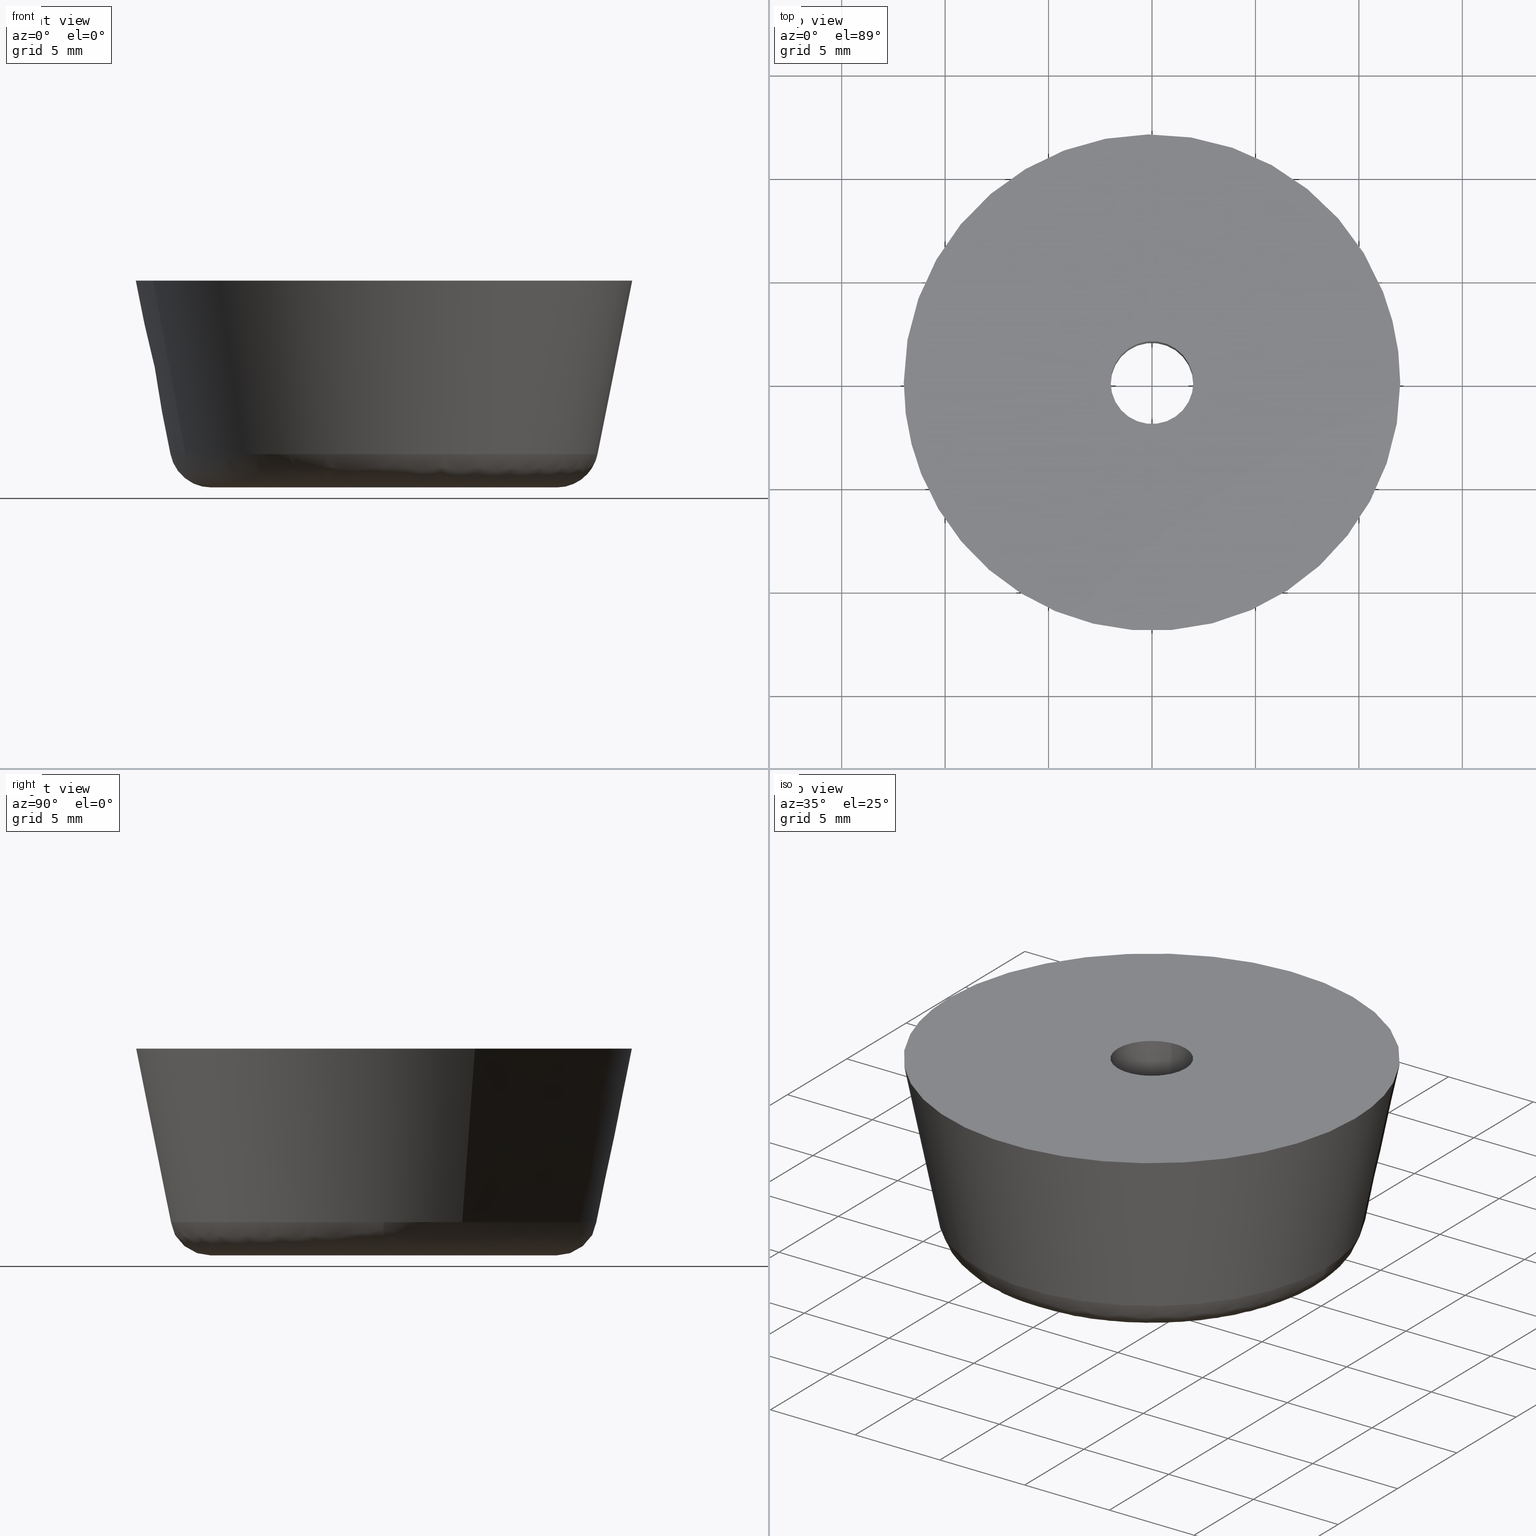
[diagram: canonical four-view strip — front | top / right | iso, engineering-drawing reading convention]
A machine part, canonical four-view strip (front | top / right | iso — engineering-drawing reading convention). The complete STEP part file that produces these views, byte-faithful:
ISO-10303-21;
HEADER;

FILE_DESCRIPTION( (''), '2;1');
FILE_NAME ('PC08.5220.TM_TK_24_6937.stp','2019-07-25T18:44:54',(''),(''),'spGate 15.6.1','','');

FILE_SCHEMA (('AUTOMOTIVE_DESIGN'));
ENDSEC;

DATA;
#10=(GEOMETRIC_REPRESENTATION_CONTEXT(3) GLOBAL_UNCERTAINTY_ASSIGNED_CONTEXT((#12)) GLOBAL_UNIT_ASSIGNED_CONTEXT((#13,#14,#15)) REPRESENTATION_CONTEXT('ID1','3D'));
#12=UNCERTAINTY_MEASURE_WITH_UNIT(LENGTH_MEASURE(0.01),#16,'DISTANCE_ACCURACY_VALUE','Maximum model space distance between geometric entities at asserted connectivities');
#13=(NAMED_UNIT(*) SI_UNIT($,.STERADIAN.) SOLID_ANGLE_UNIT());
#14=(CONVERSION_BASED_UNIT('DEGREE',#35) NAMED_UNIT(#36) PLANE_ANGLE_UNIT());
#15=(LENGTH_UNIT() NAMED_UNIT(*) SI_UNIT(.MILLI.,.METRE.));
#16=(LENGTH_UNIT() NAMED_UNIT(*) SI_UNIT(.MILLI.,.METRE.));
#17=AXIS2_PLACEMENT_3D('',#38,#39,#40);
#18=AXIS2_PLACEMENT_3D('',#41,#42,#43);
#19=PRODUCT_DEFINITION('','',#48,#49);
#20=AXIS2_PLACEMENT_3D('',#50,#51,#52);
#21=AXIS2_PLACEMENT_3D('',#53,#54,#55);
#22=SHAPE_REPRESENTATION('Assembly',(#18,#20,#21),#10);
#23=AXIS2_PLACEMENT_3D('',#58,#59,#60);
#24=PRODUCT_DEFINITION('','',#65,#66);
#25=SHAPE_REPRESENTATION('washer',(#23),#10);
#26=ITEM_DEFINED_TRANSFORMATION('','',#20,#23);
#27=(REPRESENTATION_RELATIONSHIP('','',#22,#25) REPRESENTATION_RELATIONSHIP_WITH_TRANSFORMATION(#26) SHAPE_REPRESENTATION_RELATIONSHIP());
#29=AXIS2_PLACEMENT_3D('',#73,#74,#75);
#30=PRODUCT_DEFINITION('','',#80,#81);
#31=SHAPE_REPRESENTATION('rubber foot',(#29),#10);
#32=ITEM_DEFINED_TRANSFORMATION('','',#21,#29);
#33=(REPRESENTATION_RELATIONSHIP('','',#22,#31) REPRESENTATION_RELATIONSHIP_WITH_TRANSFORMATION(#32) SHAPE_REPRESENTATION_RELATIONSHIP());
#35=PLANE_ANGLE_MEASURE_WITH_UNIT(PLANE_ANGLE_MEASURE(0.01745329252),#37);
#36=DIMENSIONAL_EXPONENTS(0.0,0.0,0.0,0.0,0.0,0.0,0.0);
#37=(NAMED_UNIT(*) PLANE_ANGLE_UNIT() SI_UNIT($,.RADIAN.));
#38=CARTESIAN_POINT('',(0.00000000000E+000,0.00000000000E+000,0.00000000000E+000));
#39=DIRECTION('',(0.00000000000E+000,0.00000000000E+000,1.00000000000E+000));
#40=DIRECTION('',(1.00000000000E+000,0.00000000000E+000,0.00000000000E+000));
#41=CARTESIAN_POINT('',(0.00000000000E+000,0.00000000000E+000,0.00000000000E+000));
#42=DIRECTION('',(0.00000000000E+000,0.00000000000E+000,1.00000000000E+000));
#43=DIRECTION('',(1.00000000000E+000,0.00000000000E+000,0.00000000000E+000));
#44=APPLICATION_CONTEXT('configuration controlled 3d designs of mechanical parts and assemblies');
#45=APPLICATION_PROTOCOL_DEFINITION('International Standard','automotive_design',1999,#44);
#46=PRODUCT_CONTEXT('',#44,'');
#47=PRODUCT('Assembly','Assembly','',(#46));
#48=PRODUCT_DEFINITION_FORMATION_WITH_SPECIFIED_SOURCE('','',#47,.NOT_KNOWN.);
#49=PRODUCT_DEFINITION_CONTEXT('design',#44,'');
#50=CARTESIAN_POINT('',(0.00000000000E+000,0.00000000000E+000,0.00000000000E+000));
#51=DIRECTION('',(0.00000000000E+000,0.00000000000E+000,1.00000000000E+000));
#52=DIRECTION('',(1.00000000000E+000,0.00000000000E+000,0.00000000000E+000));
#53=CARTESIAN_POINT('',(0.00000000000E+000,0.00000000000E+000,0.00000000000E+000));
#54=DIRECTION('',(0.00000000000E+000,0.00000000000E+000,1.00000000000E+000));
#55=DIRECTION('',(1.00000000000E+000,0.00000000000E+000,0.00000000000E+000));
#56=PRODUCT_DEFINITION_SHAPE('','',#19);
#57=SHAPE_DEFINITION_REPRESENTATION(#56,#22);
#58=CARTESIAN_POINT('',(0.00000000000E+000,0.00000000000E+000,0.00000000000E+000));
#59=DIRECTION('',(0.00000000000E+000,0.00000000000E+000,1.00000000000E+000));
#60=DIRECTION('',(1.00000000000E+000,0.00000000000E+000,0.00000000000E+000));
#61=APPLICATION_CONTEXT('configuration controlled 3d designs of mechanical parts and assemblies');
#62=APPLICATION_PROTOCOL_DEFINITION('International Standard','automotive_design',1999,#61);
#63=PRODUCT_CONTEXT('',#61,'');
#64=PRODUCT('washer','washer','',(#63));
#65=PRODUCT_DEFINITION_FORMATION_WITH_SPECIFIED_SOURCE('','',#64,.NOT_KNOWN.);
#66=PRODUCT_DEFINITION_CONTEXT('design',#61,'');
#67=PRODUCT_DEFINITION_SHAPE('','',#24);
#68=SHAPE_DEFINITION_REPRESENTATION(#67,#25);
#69=NEXT_ASSEMBLY_USAGE_OCCURRENCE('','','',#19,#24,'');
#70=PRODUCT_DEFINITION_SHAPE('','',#69);
#71=CONTEXT_DEPENDENT_SHAPE_REPRESENTATION(#27,#70);
#73=CARTESIAN_POINT('',(0.00000000000E+000,0.00000000000E+000,0.00000000000E+000));
#74=DIRECTION('',(0.00000000000E+000,0.00000000000E+000,1.00000000000E+000));
#75=DIRECTION('',(1.00000000000E+000,0.00000000000E+000,0.00000000000E+000));
#76=APPLICATION_CONTEXT('configuration controlled 3d designs of mechanical parts and assemblies');
#77=APPLICATION_PROTOCOL_DEFINITION('International Standard','automotive_design',1999,#76);
#78=PRODUCT_CONTEXT('',#76,'');
#79=PRODUCT('rubber foot','rubber foot','',(#78));
#80=PRODUCT_DEFINITION_FORMATION_WITH_SPECIFIED_SOURCE('','',#79,.NOT_KNOWN.);
#81=PRODUCT_DEFINITION_CONTEXT('design',#76,'');
#82=PRODUCT_DEFINITION_SHAPE('','',#30);
#83=SHAPE_DEFINITION_REPRESENTATION(#82,#31);
#84=NEXT_ASSEMBLY_USAGE_OCCURRENCE('','','',#19,#30,'');
#85=PRODUCT_DEFINITION_SHAPE('','',#84);
#86=CONTEXT_DEPENDENT_SHAPE_REPRESENTATION(#33,#85);
#88=SHAPE_REPRESENTATION_RELATIONSHIP('','',#25,#91);
#89=SHAPE_REPRESENTATION_RELATIONSHIP('','',#31,#93);
#90=MANIFOLD_SOLID_BREP('washer',#94);
#91=ADVANCED_BREP_SHAPE_REPRESENTATION('washer',(#90),#10);
#92=MANIFOLD_SOLID_BREP('rubber foot',#103);
#93=ADVANCED_BREP_SHAPE_REPRESENTATION('rubber foot',(#92),#10);
#94=CLOSED_SHELL('',(#112,#113,#114,#115,#116,#117));
#95=COLOUR_RGB('',0.00000000000E+000,0.00000000000E+000,0.00000000000E+000);
#96=FILL_AREA_STYLE_COLOUR('',#95);
#97=FILL_AREA_STYLE('',(#96));
#98=SURFACE_STYLE_FILL_AREA(#97);
#99=SURFACE_SIDE_STYLE('',(#98));
#100=SURFACE_STYLE_USAGE(.BOTH.,#99);
#101=PRESENTATION_STYLE_ASSIGNMENT((#100));
#102=STYLED_ITEM('',(#101),#90);
#103=CLOSED_SHELL('',(#118,#119,#120,#121,#122,#123,#124,#125,#126,#127,#128,#129,#130,#131));
#104=COLOUR_RGB('',0.00000000000E+000,0.00000000000E+000,0.00000000000E+000);
#105=FILL_AREA_STYLE_COLOUR('',#104);
#106=FILL_AREA_STYLE('',(#105));
#107=SURFACE_STYLE_FILL_AREA(#106);
#108=SURFACE_SIDE_STYLE('',(#107));
#109=SURFACE_STYLE_USAGE(.BOTH.,#108);
#110=PRESENTATION_STYLE_ASSIGNMENT((#109));
#111=STYLED_ITEM('',(#110),#92);
#112=ADVANCED_FACE('',(#133,#134),#132,.F.);
#113=ADVANCED_FACE('',(#144,#145),#143,.F.);
#114=ADVANCED_FACE('',(#155),#154,.F.);
#115=ADVANCED_FACE('',(#165),#164,.F.);
#116=ADVANCED_FACE('',(#175),#174,.T.);
#117=ADVANCED_FACE('',(#185),#184,.T.);
#118=ADVANCED_FACE('',(#195,#196),#194,.F.);
#119=ADVANCED_FACE('',(#206,#207),#205,.F.);
#120=ADVANCED_FACE('',(#217,#218),#216,.F.);
#121=ADVANCED_FACE('',(#228,#229),#227,.F.);
#122=ADVANCED_FACE('',(#239),#238,.T.);
#123=ADVANCED_FACE('',(#249),#248,.T.);
#124=ADVANCED_FACE('',(#259),#258,.T.);
#125=ADVANCED_FACE('',(#269),#268,.T.);
#126=ADVANCED_FACE('',(#279),#278,.F.);
#127=ADVANCED_FACE('',(#289),#288,.F.);
#128=ADVANCED_FACE('',(#299),#298,.F.);
#129=ADVANCED_FACE('',(#309),#308,.F.);
#130=ADVANCED_FACE('',(#319),#318,.F.);
#131=ADVANCED_FACE('',(#329),#328,.F.);
#132=PLANE('',#341);
#133=FACE_OUTER_BOUND('',#342,.T.);
#134=FACE_BOUND('',#343,.T.);
#135=COLOUR_RGB('',1.00000000000E+000,1.00000000000E+000,1.00000000000E+000);
#136=FILL_AREA_STYLE_COLOUR('',#135);
#137=FILL_AREA_STYLE('',(#136));
#138=SURFACE_STYLE_FILL_AREA(#137);
#139=SURFACE_SIDE_STYLE('',(#138));
#140=SURFACE_STYLE_USAGE(.BOTH.,#139);
#141=PRESENTATION_STYLE_ASSIGNMENT((#140));
#142=STYLED_ITEM('',(#141),#112);
#143=PLANE('',#347);
#144=FACE_OUTER_BOUND('',#348,.T.);
#145=FACE_BOUND('',#349,.T.);
#146=COLOUR_RGB('',1.00000000000E+000,1.00000000000E+000,1.00000000000E+000);
#147=FILL_AREA_STYLE_COLOUR('',#146);
#148=FILL_AREA_STYLE('',(#147));
#149=SURFACE_STYLE_FILL_AREA(#148);
#150=SURFACE_SIDE_STYLE('',(#149));
#151=SURFACE_STYLE_USAGE(.BOTH.,#150);
#152=PRESENTATION_STYLE_ASSIGNMENT((#151));
#153=STYLED_ITEM('',(#152),#113);
#154=CYLINDRICAL_SURFACE('',#353,2.00000000000E+000);
#155=FACE_OUTER_BOUND('',#354,.T.);
#156=COLOUR_RGB('',1.00000000000E+000,1.00000000000E+000,1.00000000000E+000);
#157=FILL_AREA_STYLE_COLOUR('',#156);
#158=FILL_AREA_STYLE('',(#157));
#159=SURFACE_STYLE_FILL_AREA(#158);
#160=SURFACE_SIDE_STYLE('',(#159));
#161=SURFACE_STYLE_USAGE(.BOTH.,#160);
#162=PRESENTATION_STYLE_ASSIGNMENT((#161));
#163=STYLED_ITEM('',(#162),#114);
#164=CYLINDRICAL_SURFACE('',#358,2.00000000000E+000);
#165=FACE_OUTER_BOUND('',#359,.T.);
#166=COLOUR_RGB('',1.00000000000E+000,1.00000000000E+000,1.00000000000E+000);
#167=FILL_AREA_STYLE_COLOUR('',#166);
#168=FILL_AREA_STYLE('',(#167));
#169=SURFACE_STYLE_FILL_AREA(#168);
#170=SURFACE_SIDE_STYLE('',(#169));
#171=SURFACE_STYLE_USAGE(.BOTH.,#170);
#172=PRESENTATION_STYLE_ASSIGNMENT((#171));
#173=STYLED_ITEM('',(#172),#115);
#174=CYLINDRICAL_SURFACE('',#363,5.00000000000E+000);
#175=FACE_OUTER_BOUND('',#364,.T.);
#176=COLOUR_RGB('',1.00000000000E+000,1.00000000000E+000,1.00000000000E+000);
#177=FILL_AREA_STYLE_COLOUR('',#176);
#178=FILL_AREA_STYLE('',(#177));
#179=SURFACE_STYLE_FILL_AREA(#178);
#180=SURFACE_SIDE_STYLE('',(#179));
#181=SURFACE_STYLE_USAGE(.BOTH.,#180);
#182=PRESENTATION_STYLE_ASSIGNMENT((#181));
#183=STYLED_ITEM('',(#182),#116);
#184=CYLINDRICAL_SURFACE('',#368,5.00000000000E+000);
#185=FACE_OUTER_BOUND('',#369,.T.);
#186=COLOUR_RGB('',1.00000000000E+000,1.00000000000E+000,1.00000000000E+000);
#187=FILL_AREA_STYLE_COLOUR('',#186);
#188=FILL_AREA_STYLE('',(#187));
#189=SURFACE_STYLE_FILL_AREA(#188);
#190=SURFACE_SIDE_STYLE('',(#189));
#191=SURFACE_STYLE_USAGE(.BOTH.,#190);
#192=PRESENTATION_STYLE_ASSIGNMENT((#191));
#193=STYLED_ITEM('',(#192),#117);
#194=PLANE('',#373);
#195=FACE_OUTER_BOUND('',#374,.T.);
#196=FACE_BOUND('',#375,.T.);
#197=COLOUR_RGB('',1.00000000000E+000,1.00000000000E+000,1.00000000000E+000);
#198=FILL_AREA_STYLE_COLOUR('',#197);
#199=FILL_AREA_STYLE('',(#198));
#200=SURFACE_STYLE_FILL_AREA(#199);
#201=SURFACE_SIDE_STYLE('',(#200));
#202=SURFACE_STYLE_USAGE(.BOTH.,#201);
#203=PRESENTATION_STYLE_ASSIGNMENT((#202));
#204=STYLED_ITEM('',(#203),#118);
#205=PLANE('',#379);
#206=FACE_OUTER_BOUND('',#380,.T.);
#207=FACE_BOUND('',#381,.T.);
#208=COLOUR_RGB('',1.00000000000E+000,1.00000000000E+000,1.00000000000E+000);
#209=FILL_AREA_STYLE_COLOUR('',#208);
#210=FILL_AREA_STYLE('',(#209));
#211=SURFACE_STYLE_FILL_AREA(#210);
#212=SURFACE_SIDE_STYLE('',(#211));
#213=SURFACE_STYLE_USAGE(.BOTH.,#212);
#214=PRESENTATION_STYLE_ASSIGNMENT((#213));
#215=STYLED_ITEM('',(#214),#119);
#216=PLANE('',#385);
#217=FACE_OUTER_BOUND('',#386,.T.);
#218=FACE_BOUND('',#387,.T.);
#219=COLOUR_RGB('',1.00000000000E+000,1.00000000000E+000,1.00000000000E+000);
#220=FILL_AREA_STYLE_COLOUR('',#219);
#221=FILL_AREA_STYLE('',(#220));
#222=SURFACE_STYLE_FILL_AREA(#221);
#223=SURFACE_SIDE_STYLE('',(#222));
#224=SURFACE_STYLE_USAGE(.BOTH.,#223);
#225=PRESENTATION_STYLE_ASSIGNMENT((#224));
#226=STYLED_ITEM('',(#225),#120);
#227=PLANE('',#391);
#228=FACE_OUTER_BOUND('',#392,.T.);
#229=FACE_BOUND('',#393,.T.);
#230=COLOUR_RGB('',1.00000000000E+000,1.00000000000E+000,1.00000000000E+000);
#231=FILL_AREA_STYLE_COLOUR('',#230);
#232=FILL_AREA_STYLE('',(#231));
#233=SURFACE_STYLE_FILL_AREA(#232);
#234=SURFACE_SIDE_STYLE('',(#233));
#235=SURFACE_STYLE_USAGE(.BOTH.,#234);
#236=PRESENTATION_STYLE_ASSIGNMENT((#235));
#237=STYLED_ITEM('',(#236),#121);
#238=( BOUNDED_SURFACE() B_SPLINE_SURFACE( 2,2,((#394,#395,#396,#397,#398),(#399,#400,#401,#402,#403),(#404,#405,#406,#407,#408),(#409,#410,#411,#412,#413),(#414,#415,#416,#417,#418)), .UNSPECIFIED.,.F.,.F.,.F.) B_SPLINE_SURFACE_WITH_KNOTS((3,2,3),(3,2,3),(0.00000000000E+000,5.00000000000E-001,1.00000000000E+000),(0.00000000000E+000,5.00000000000E-001,1.00000000000E+000), .UNSPECIFIED. ) GEOMETRIC_REPRESENTATION_ITEM() RATIONAL_B_SPLINE_SURFACE(((1.00000000000E+000,7.73342134342E-001,1.00000000000E+000,7.73342134342E-001,1.00000000000E+000),(7.07106781187E-001,5.46835467371E-001,7.07106781187E-001,5.46835467371E-001,7.07106781187E-001),(1.00000000000E+000,7.73342134342E-001,1.00000000000E+000,7.73342134342E-001,1.00000000000E+000),(7.07106781187E-001,5.46835467371E-001,7.07106781187E-001,5.46835467371E-001,7.07106781187E-001),(1.00000000000E+000,7.73342134342E-001,1.00000000000E+000,7.73342134342E-001,1.00000000000E+000))) REPRESENTATION_ITEM('') SURFACE() );
#239=FACE_OUTER_BOUND('',#419,.T.);
#240=COLOUR_RGB('',1.00000000000E+000,1.00000000000E+000,1.00000000000E+000);
#241=FILL_AREA_STYLE_COLOUR('',#240);
#242=FILL_AREA_STYLE('',(#241));
#243=SURFACE_STYLE_FILL_AREA(#242);
#244=SURFACE_SIDE_STYLE('',(#243));
#245=SURFACE_STYLE_USAGE(.BOTH.,#244);
#246=PRESENTATION_STYLE_ASSIGNMENT((#245));
#247=STYLED_ITEM('',(#246),#122);
#248=( BOUNDED_SURFACE() B_SPLINE_SURFACE( 2,2,((#420,#421,#422,#423,#424),(#425,#426,#427,#428,#429),(#430,#431,#432,#433,#434),(#435,#436,#437,#438,#439),(#440,#441,#442,#443,#444)), .UNSPECIFIED.,.F.,.F.,.F.) B_SPLINE_SURFACE_WITH_KNOTS((3,2,3),(3,2,3),(0.00000000000E+000,5.00000000000E-001,1.00000000000E+000),(0.00000000000E+000,5.00000000000E-001,1.00000000000E+000), .UNSPECIFIED. ) GEOMETRIC_REPRESENTATION_ITEM() RATIONAL_B_SPLINE_SURFACE(((1.00000000000E+000,7.73342134342E-001,1.00000000000E+000,7.73342134342E-001,1.00000000000E+000),(7.07106781187E-001,5.46835467371E-001,7.07106781187E-001,5.46835467371E-001,7.07106781187E-001),(1.00000000000E+000,7.73342134342E-001,1.00000000000E+000,7.73342134342E-001,1.00000000000E+000),(7.07106781187E-001,5.46835467371E-001,7.07106781187E-001,5.46835467371E-001,7.07106781187E-001),(1.00000000000E+000,7.73342134342E-001,1.00000000000E+000,7.73342134342E-001,1.00000000000E+000))) REPRESENTATION_ITEM('') SURFACE() );
#249=FACE_OUTER_BOUND('',#445,.T.);
#250=COLOUR_RGB('',1.00000000000E+000,1.00000000000E+000,1.00000000000E+000);
#251=FILL_AREA_STYLE_COLOUR('',#250);
#252=FILL_AREA_STYLE('',(#251));
#253=SURFACE_STYLE_FILL_AREA(#252);
#254=SURFACE_SIDE_STYLE('',(#253));
#255=SURFACE_STYLE_USAGE(.BOTH.,#254);
#256=PRESENTATION_STYLE_ASSIGNMENT((#255));
#257=STYLED_ITEM('',(#256),#123);
#258=( BOUNDED_SURFACE() B_SPLINE_SURFACE( 2,1,((#446,#447),(#448,#449),(#450,#451),(#452,#453),(#454,#455)), .UNSPECIFIED.,.F.,.F.,.F.) B_SPLINE_SURFACE_WITH_KNOTS((3,2,3),(2,2),(0.00000000000E+000,5.00000000000E-001,1.00000000000E+000),(0.00000000000E+000,1.00000000000E+000), .UNSPECIFIED. ) GEOMETRIC_REPRESENTATION_ITEM() RATIONAL_B_SPLINE_SURFACE(((1.00000000000E+000,1.00000000000E+000),(7.07106781187E-001,7.07106781187E-001),(1.00000000000E+000,1.00000000000E+000),(7.07106781187E-001,7.07106781187E-001),(1.00000000000E+000,1.00000000000E+000))) REPRESENTATION_ITEM('') SURFACE() );
#259=FACE_OUTER_BOUND('',#456,.T.);
#260=COLOUR_RGB('',1.00000000000E+000,1.00000000000E+000,1.00000000000E+000);
#261=FILL_AREA_STYLE_COLOUR('',#260);
#262=FILL_AREA_STYLE('',(#261));
#263=SURFACE_STYLE_FILL_AREA(#262);
#264=SURFACE_SIDE_STYLE('',(#263));
#265=SURFACE_STYLE_USAGE(.BOTH.,#264);
#266=PRESENTATION_STYLE_ASSIGNMENT((#265));
#267=STYLED_ITEM('',(#266),#124);
#268=( BOUNDED_SURFACE() B_SPLINE_SURFACE( 2,1,((#457,#458),(#459,#460),(#461,#462),(#463,#464),(#465,#466)), .UNSPECIFIED.,.F.,.F.,.F.) B_SPLINE_SURFACE_WITH_KNOTS((3,2,3),(2,2),(0.00000000000E+000,5.00000000000E-001,1.00000000000E+000),(0.00000000000E+000,1.00000000000E+000), .UNSPECIFIED. ) GEOMETRIC_REPRESENTATION_ITEM() RATIONAL_B_SPLINE_SURFACE(((1.00000000000E+000,1.00000000000E+000),(7.07106781187E-001,7.07106781187E-001),(1.00000000000E+000,1.00000000000E+000),(7.07106781187E-001,7.07106781187E-001),(1.00000000000E+000,1.00000000000E+000))) REPRESENTATION_ITEM('') SURFACE() );
#269=FACE_OUTER_BOUND('',#467,.T.);
#270=COLOUR_RGB('',1.00000000000E+000,1.00000000000E+000,1.00000000000E+000);
#271=FILL_AREA_STYLE_COLOUR('',#270);
#272=FILL_AREA_STYLE('',(#271));
#273=SURFACE_STYLE_FILL_AREA(#272);
#274=SURFACE_SIDE_STYLE('',(#273));
#275=SURFACE_STYLE_USAGE(.BOTH.,#274);
#276=PRESENTATION_STYLE_ASSIGNMENT((#275));
#277=STYLED_ITEM('',(#276),#125);
#278=CYLINDRICAL_SURFACE('',#471,2.00000000000E+000);
#279=FACE_OUTER_BOUND('',#472,.T.);
#280=COLOUR_RGB('',1.00000000000E+000,1.00000000000E+000,1.00000000000E+000);
#281=FILL_AREA_STYLE_COLOUR('',#280);
#282=FILL_AREA_STYLE('',(#281));
#283=SURFACE_STYLE_FILL_AREA(#282);
#284=SURFACE_SIDE_STYLE('',(#283));
#285=SURFACE_STYLE_USAGE(.BOTH.,#284);
#286=PRESENTATION_STYLE_ASSIGNMENT((#285));
#287=STYLED_ITEM('',(#286),#126);
#288=CYLINDRICAL_SURFACE('',#476,2.00000000000E+000);
#289=FACE_OUTER_BOUND('',#477,.T.);
#290=COLOUR_RGB('',1.00000000000E+000,1.00000000000E+000,1.00000000000E+000);
#291=FILL_AREA_STYLE_COLOUR('',#290);
#292=FILL_AREA_STYLE('',(#291));
#293=SURFACE_STYLE_FILL_AREA(#292);
#294=SURFACE_SIDE_STYLE('',(#293));
#295=SURFACE_STYLE_USAGE(.BOTH.,#294);
#296=PRESENTATION_STYLE_ASSIGNMENT((#295));
#297=STYLED_ITEM('',(#296),#127);
#298=CYLINDRICAL_SURFACE('',#481,5.00000000000E+000);
#299=FACE_OUTER_BOUND('',#482,.T.);
#300=COLOUR_RGB('',1.00000000000E+000,1.00000000000E+000,1.00000000000E+000);
#301=FILL_AREA_STYLE_COLOUR('',#300);
#302=FILL_AREA_STYLE('',(#301));
#303=SURFACE_STYLE_FILL_AREA(#302);
#304=SURFACE_SIDE_STYLE('',(#303));
#305=SURFACE_STYLE_USAGE(.BOTH.,#304);
#306=PRESENTATION_STYLE_ASSIGNMENT((#305));
#307=STYLED_ITEM('',(#306),#128);
#308=CYLINDRICAL_SURFACE('',#486,5.00000000000E+000);
#309=FACE_OUTER_BOUND('',#487,.T.);
#310=COLOUR_RGB('',1.00000000000E+000,1.00000000000E+000,1.00000000000E+000);
#311=FILL_AREA_STYLE_COLOUR('',#310);
#312=FILL_AREA_STYLE('',(#311));
#313=SURFACE_STYLE_FILL_AREA(#312);
#314=SURFACE_SIDE_STYLE('',(#313));
#315=SURFACE_STYLE_USAGE(.BOTH.,#314);
#316=PRESENTATION_STYLE_ASSIGNMENT((#315));
#317=STYLED_ITEM('',(#316),#129);
#318=CYLINDRICAL_SURFACE('',#491,4.50000000000E+000);
#319=FACE_OUTER_BOUND('',#492,.T.);
#320=COLOUR_RGB('',1.00000000000E+000,1.00000000000E+000,1.00000000000E+000);
#321=FILL_AREA_STYLE_COLOUR('',#320);
#322=FILL_AREA_STYLE('',(#321));
#323=SURFACE_STYLE_FILL_AREA(#322);
#324=SURFACE_SIDE_STYLE('',(#323));
#325=SURFACE_STYLE_USAGE(.BOTH.,#324);
#326=PRESENTATION_STYLE_ASSIGNMENT((#325));
#327=STYLED_ITEM('',(#326),#130);
#328=CYLINDRICAL_SURFACE('',#496,4.50000000000E+000);
#329=FACE_OUTER_BOUND('',#497,.T.);
#330=COLOUR_RGB('',1.00000000000E+000,1.00000000000E+000,1.00000000000E+000);
#331=FILL_AREA_STYLE_COLOUR('',#330);
#332=FILL_AREA_STYLE('',(#331));
#333=SURFACE_STYLE_FILL_AREA(#332);
#334=SURFACE_SIDE_STYLE('',(#333));
#335=SURFACE_STYLE_USAGE(.BOTH.,#334);
#336=PRESENTATION_STYLE_ASSIGNMENT((#335));
#337=STYLED_ITEM('',(#336),#131);
#338=CARTESIAN_POINT('',(1.15000000000E+001,-1.03923048454E+001,5.80000000000E+000));
#339=DIRECTION('',(0.00000000000E+000,0.00000000000E+000,-1.00000000000E+000));
#340=DIRECTION('',(-1.00000000000E+000,0.00000000000E+000,0.00000000000E+000));
#341=AXIS2_PLACEMENT_3D('',#338,#339,#340);
#342=EDGE_LOOP('',(#498,#499,#500));
#343=EDGE_LOOP('',(#501,#502,#503));
#344=CARTESIAN_POINT('',(-6.50000000000E+000,-1.03923048454E+001,5.00000000000E+000));
#345=DIRECTION('',(0.00000000000E+000,0.00000000000E+000,1.00000000000E+000));
#346=DIRECTION('',(1.00000000000E+000,0.00000000000E+000,0.00000000000E+000));
#347=AXIS2_PLACEMENT_3D('',#344,#345,#346);
#348=EDGE_LOOP('',(#504,#505,#506));
#349=EDGE_LOOP('',(#507,#508,#509));
#350=CARTESIAN_POINT('',(1.47029694213E-014,1.75890392299E-015,5.82000000000E+000));
#351=DIRECTION('',(3.50027562528E-014,4.16060816688E-015,1.00000000000E+000));
#352=DIRECTION('',(1.18034234657E-001,-9.93009526364E-001,-2.61901820533E-028));
#353=AXIS2_PLACEMENT_3D('',#350,#351,#352);
#354=EDGE_LOOP('',(#510,#511,#512,#513));
#355=CARTESIAN_POINT('',(1.47029694213E-014,1.75890392299E-015,5.82000000000E+000));
#356=DIRECTION('',(3.50027562528E-014,4.16060816688E-015,1.00000000000E+000));
#357=DIRECTION('',(1.18034234657E-001,-9.93009526364E-001,-2.61901820533E-028));
#358=AXIS2_PLACEMENT_3D('',#355,#356,#357);
#359=EDGE_LOOP('',(#514,#515,#516,#517,#518,#519));
#360=CARTESIAN_POINT('',(5.91714691216E-015,6.96573987222E-016,5.82000000000E+000));
#361=DIRECTION('',(1.40140186473E-014,1.66577854652E-015,1.00000000000E+000));
#362=DIRECTION('',(1.18034234657E-001,-9.93009526364E-001,-1.65660790096E-029));
#363=AXIS2_PLACEMENT_3D('',#360,#361,#362);
#364=EDGE_LOOP('',(#520,#521,#522,#523));
#365=CARTESIAN_POINT('',(5.91714691216E-015,6.96573987222E-016,5.82000000000E+000));
#366=DIRECTION('',(1.40140186473E-014,1.66577854652E-015,1.00000000000E+000));
#367=DIRECTION('',(1.18034234657E-001,-9.93009526364E-001,-1.65660790096E-029));
#368=AXIS2_PLACEMENT_3D('',#365,#366,#367);
#369=EDGE_LOOP('',(#524,#525,#526,#527,#528,#529));
#370=CARTESIAN_POINT('',(1.15000000000E+001,-1.03923048454E+001,5.00000000000E+000));
#371=DIRECTION('',(0.00000000000E+000,0.00000000000E+000,-1.00000000000E+000));
#372=DIRECTION('',(-1.00000000000E+000,0.00000000000E+000,0.00000000000E+000));
#373=AXIS2_PLACEMENT_3D('',#370,#371,#372);
#374=EDGE_LOOP('',(#530,#531,#532));
#375=EDGE_LOOP('',(#533,#534,#535));
#376=CARTESIAN_POINT('',(-1.92289024905E+001,-1.73767492630E+001,4.21884700000E-015));
#377=DIRECTION('',(0.00000000000E+000,-0.00000000000E+000,1.00000000000E+000));
#378=DIRECTION('',(1.00000000000E+000,0.00000000000E+000,0.00000000000E+000));
#379=AXIS2_PLACEMENT_3D('',#376,#377,#378);
#380=EDGE_LOOP('',(#536,#537));
#381=EDGE_LOOP('',(#538,#539,#540));
#382=CARTESIAN_POINT('',(1.44000000000E+001,-1.51244447844E+001,1.00000000000E+001));
#383=DIRECTION('',(0.00000000000E+000,0.00000000000E+000,-1.00000000000E+000));
#384=DIRECTION('',(-1.00000000000E+000,0.00000000000E+000,0.00000000000E+000));
#385=AXIS2_PLACEMENT_3D('',#382,#383,#384);
#386=EDGE_LOOP('',(#541,#542,#543,#544,#545));
#387=EDGE_LOOP('',(#546,#547,#548));
#388=CARTESIAN_POINT('',(-6.50000000000E+000,-1.03923048454E+001,5.80000000000E+000));
#389=DIRECTION('',(0.00000000000E+000,0.00000000000E+000,1.00000000000E+000));
#390=DIRECTION('',(1.00000000000E+000,0.00000000000E+000,0.00000000000E+000));
#391=AXIS2_PLACEMENT_3D('',#388,#389,#390);
#392=EDGE_LOOP('',(#549,#550,#551));
#393=EDGE_LOOP('',(#552,#553,#554));
#394=CARTESIAN_POINT('',(-6.39923102714E+000,-6.88773849917E-016,1.60776777301E+000));
#395=CARTESIAN_POINT('',(-6.72078454484E+000,-7.28151498004E-016,4.88109740320E-015));
#396=CARTESIAN_POINT('',(-8.36039238718E+000,-9.28938916154E-016,4.66293670343E-015));
#397=CARTESIAN_POINT('',(-1.00000002295E+001,-1.12972633430E-015,4.59397402655E-015));
#398=CARTESIAN_POINT('',(-1.03215537472E+001,-1.16910398239E-015,1.60776777301E+000));
#399=CARTESIAN_POINT('',(-6.39923102714E+000,-6.39923102714E+000,1.60776777301E+000));
#400=CARTESIAN_POINT('',(-6.72078454484E+000,-6.72078454484E+000,4.88109740320E-015));
#401=CARTESIAN_POINT('',(-8.36039238718E+000,-8.36039238718E+000,4.66293670343E-015));
#402=CARTESIAN_POINT('',(-1.00000002295E+001,-1.00000002295E+001,4.59397402655E-015));
#403=CARTESIAN_POINT('',(-1.03215537472E+001,-1.03215537472E+001,1.60776777301E+000));
#404=CARTESIAN_POINT('',(1.05056391328E-014,-6.39923102714E+000,1.60776777301E+000));
#405=CARTESIAN_POINT('',(1.05253273065E-014,-6.72078454484E+000,4.88109740320E-015));
#406=CARTESIAN_POINT('',(1.06257176999E-014,-8.36039238718E+000,4.66293670343E-015));
#407=CARTESIAN_POINT('',(1.07261080932E-014,-1.00000002295E+001,4.59397402655E-015));
#408=CARTESIAN_POINT('',(1.07457962670E-014,-1.03215537472E+001,1.60776777301E+000));
#409=CARTESIAN_POINT('',(6.39923102714E+000,-6.39923102714E+000,1.60776777301E+000));
#410=CARTESIAN_POINT('',(6.72078454484E+000,-6.72078454484E+000,4.88109740320E-015));
#411=CARTESIAN_POINT('',(8.36039238718E+000,-8.36039238718E+000,4.66293670343E-015));
#412=CARTESIAN_POINT('',(1.00000002295E+001,-1.00000002295E+001,4.59397402655E-015));
#413=CARTESIAN_POINT('',(1.03215537472E+001,-1.03215537472E+001,1.60776777301E+000));
#414=CARTESIAN_POINT('',(6.39923102714E+000,9.48541657273E-017,1.60776777301E+000));
#415=CARTESIAN_POINT('',(6.72078454484E+000,9.48528651936E-017,4.88109740320E-015));
#416=CARTESIAN_POINT('',(8.36039238718E+000,9.48462337464E-017,4.66293670343E-015));
#417=CARTESIAN_POINT('',(1.00000002295E+001,9.48396022992E-017,4.59397402655E-015));
#418=CARTESIAN_POINT('',(1.03215537472E+001,9.48383017656E-017,1.60776777301E+000));
#419=EDGE_LOOP('',(#555,#556,#557,#558,#559));
#420=CARTESIAN_POINT('',(6.39923102714E+000,9.48541657273E-017,1.60776777301E+000));
#421=CARTESIAN_POINT('',(6.72078454484E+000,9.48528651936E-017,4.88109740320E-015));
#422=CARTESIAN_POINT('',(8.36039238718E+000,9.48462337464E-017,4.66293670343E-015));
#423=CARTESIAN_POINT('',(1.00000002295E+001,9.48396022992E-017,4.59397402655E-015));
#424=CARTESIAN_POINT('',(1.03215537472E+001,9.48383017656E-017,1.60776777301E+000));
#425=CARTESIAN_POINT('',(6.39923102714E+000,6.39923102714E+000,1.60776777301E+000));
#426=CARTESIAN_POINT('',(6.72078454484E+000,6.72078454484E+000,4.88109740320E-015));
#427=CARTESIAN_POINT('',(8.36039238718E+000,8.36039238718E+000,4.66293670343E-015));
#428=CARTESIAN_POINT('',(1.00000002295E+001,1.00000002295E+001,4.59397402655E-015));
#429=CARTESIAN_POINT('',(1.03215537472E+001,1.03215537472E+001,1.60776777301E+000));
#430=CARTESIAN_POINT('',(1.05056908966E-014,6.39923102714E+000,1.60776777301E+000));
#431=CARTESIAN_POINT('',(1.05253816714E-014,6.72078454484E+000,4.88109740320E-015));
#432=CARTESIAN_POINT('',(1.06257853276E-014,8.36039238718E+000,4.66293670343E-015));
#433=CARTESIAN_POINT('',(1.07261889839E-014,1.00000002295E+001,4.59397402655E-015));
#434=CARTESIAN_POINT('',(1.07458797587E-014,1.03215537472E+001,1.60776777301E+000));
#435=CARTESIAN_POINT('',(-6.39923102714E+000,6.39923102714E+000,1.60776777301E+000));
#436=CARTESIAN_POINT('',(-6.72078454484E+000,6.72078454484E+000,4.88109740320E-015));
#437=CARTESIAN_POINT('',(-8.36039238718E+000,8.36039238718E+000,4.66293670343E-015));
#438=CARTESIAN_POINT('',(-1.00000002295E+001,1.00000002295E+001,4.59397402655E-015));
#439=CARTESIAN_POINT('',(-1.03215537472E+001,1.03215537472E+001,1.60776777301E+000));
#440=CARTESIAN_POINT('',(-6.39923102714E+000,8.78585708963E-016,1.60776777301E+000));
#441=CARTESIAN_POINT('',(-6.72078454484E+000,9.17965958117E-016,4.88109740320E-015));
#442=CARTESIAN_POINT('',(-8.36039238718E+000,1.11876663916E-015,4.66293670343E-015));
#443=CARTESIAN_POINT('',(-1.00000002295E+001,1.31956732021E-015,4.59397402655E-015));
#444=CARTESIAN_POINT('',(-1.03215537472E+001,1.35894756936E-015,1.60776777301E+000));
#445=EDGE_LOOP('',(#560,#561,#562,#563,#564));
#446=CARTESIAN_POINT('',(9.59764558634E+000,3.79732418365E+000,1.60776777301E+000));
#447=CARTESIAN_POINT('',(1.11585032174E+001,4.41488005985E+000,1.00006999949E+001));
#448=CARTESIAN_POINT('',(5.80032140269E+000,1.33949697700E+001,1.60776777301E+000));
#449=CARTESIAN_POINT('',(6.74362315751E+000,1.55733832772E+001,1.00006999949E+001));
#450=CARTESIAN_POINT('',(-3.79732418365E+000,9.59764558634E+000,1.60776777301E+000));
#451=CARTESIAN_POINT('',(-4.41488005985E+000,1.11585032174E+001,1.00006999949E+001));
#452=CARTESIAN_POINT('',(-1.33949697700E+001,5.80032140269E+000,1.60776777301E+000));
#453=CARTESIAN_POINT('',(-1.55733832772E+001,6.74362315751E+000,1.00006999949E+001));
#454=CARTESIAN_POINT('',(-9.59764558634E+000,-3.79732418365E+000,1.60776777301E+000));
#455=CARTESIAN_POINT('',(-1.11585032174E+001,-4.41488005985E+000,1.00006999949E+001));
#456=EDGE_LOOP('',(#565,#566,#567,#568,#569,#570));
#457=CARTESIAN_POINT('',(-9.59764558634E+000,-3.79732418365E+000,1.60776777301E+000));
#458=CARTESIAN_POINT('',(-1.11585032174E+001,-4.41488005985E+000,1.00006999949E+001));
#459=CARTESIAN_POINT('',(-5.80032140269E+000,-1.33949697700E+001,1.60776777301E+000));
#460=CARTESIAN_POINT('',(-6.74362315751E+000,-1.55733832772E+001,1.00006999949E+001));
#461=CARTESIAN_POINT('',(3.79732418365E+000,-9.59764558634E+000,1.60776777301E+000));
#462=CARTESIAN_POINT('',(4.41488005985E+000,-1.11585032174E+001,1.00006999949E+001));
#463=CARTESIAN_POINT('',(1.33949697700E+001,-5.80032140269E+000,1.60776777301E+000));
#464=CARTESIAN_POINT('',(1.55733832772E+001,-6.74362315751E+000,1.00006999949E+001));
#465=CARTESIAN_POINT('',(9.59764558634E+000,3.79732418365E+000,1.60776777301E+000));
#466=CARTESIAN_POINT('',(1.11585032174E+001,4.41488005985E+000,1.00006999949E+001));
#467=EDGE_LOOP('',(#571,#572,#573,#574,#575,#576,#577));
#468=CARTESIAN_POINT('',(6.10924083871E-014,6.28629487979E-015,1.01050000000E+001));
#469=DIRECTION('',(2.76929706381E-014,2.84451388411E-015,1.00000000000E+000));
#470=DIRECTION('',(1.18034234657E-001,-9.93009526364E-001,-4.44089209851E-016));
#471=AXIS2_PLACEMENT_3D('',#468,#469,#470);
#472=EDGE_LOOP('',(#578,#579,#580,#581));
#473=CARTESIAN_POINT('',(6.10924083871E-014,6.28629487979E-015,1.01050000000E+001));
#474=DIRECTION('',(2.76929706381E-014,2.84451388411E-015,1.00000000000E+000));
#475=DIRECTION('',(1.18034234657E-001,-9.93009526364E-001,-4.44089209851E-016));
#476=AXIS2_PLACEMENT_3D('',#473,#474,#475);
#477=EDGE_LOOP('',(#582,#583,#584,#585,#586,#587));
#478=CARTESIAN_POINT('',(5.91714691216E-015,6.96573987222E-016,5.82000000000E+000));
#479=DIRECTION('',(1.40140186473E-014,1.66577854652E-015,1.00000000000E+000));
#480=DIRECTION('',(1.18034234657E-001,-9.93009526364E-001,-1.65660790096E-029));
#481=AXIS2_PLACEMENT_3D('',#478,#479,#480);
#482=EDGE_LOOP('',(#588,#589,#590,#591));
#483=CARTESIAN_POINT('',(5.91714691216E-015,6.96573987222E-016,5.82000000000E+000));
#484=DIRECTION('',(1.40140186473E-014,1.66577854652E-015,1.00000000000E+000));
#485=DIRECTION('',(1.18034234657E-001,-9.93009526364E-001,-1.65660790096E-029));
#486=AXIS2_PLACEMENT_3D('',#483,#484,#485);
#487=EDGE_LOOP('',(#592,#593,#594,#595,#596,#597));
#488=CARTESIAN_POINT('',(-1.43024926419E-014,-1.44938452987E-015,5.12500000000E+000));
#489=DIRECTION('',(-5.39249104633E-015,-6.40979302462E-016,1.00000000000E+000));
#490=DIRECTION('',(1.18034234657E-001,-9.93009526364E-001,-1.73549399149E-029));
#491=AXIS2_PLACEMENT_3D('',#488,#489,#490);
#492=EDGE_LOOP('',(#598,#599,#600,#601));
#493=CARTESIAN_POINT('',(-1.43024926419E-014,-1.44938452987E-015,5.12500000000E+000));
#494=DIRECTION('',(-5.39249104633E-015,-6.40979302462E-016,1.00000000000E+000));
#495=DIRECTION('',(1.18034234657E-001,-9.93009526364E-001,-1.73549399149E-029));
#496=AXIS2_PLACEMENT_3D('',#493,#494,#495);
#497=EDGE_LOOP('',(#602,#603,#604,#605,#606,#607));
#498=ORIENTED_EDGE('',*,*,#608,.F.);
#499=ORIENTED_EDGE('',*,*,#609,.F.);
#500=ORIENTED_EDGE('',*,*,#610,.F.);
#501=ORIENTED_EDGE('',*,*,#611,.T.);
#502=ORIENTED_EDGE('',*,*,#612,.T.);
#503=ORIENTED_EDGE('',*,*,#613,.T.);
#504=ORIENTED_EDGE('',*,*,#614,.T.);
#505=ORIENTED_EDGE('',*,*,#615,.T.);
#506=ORIENTED_EDGE('',*,*,#616,.T.);
#507=ORIENTED_EDGE('',*,*,#617,.F.);
#508=ORIENTED_EDGE('',*,*,#618,.F.);
#509=ORIENTED_EDGE('',*,*,#619,.F.);
#510=ORIENTED_EDGE('',*,*,#618,.T.);
#511=ORIENTED_EDGE('',*,*,#620,.T.);
#512=ORIENTED_EDGE('',*,*,#612,.F.);
#513=ORIENTED_EDGE('',*,*,#621,.F.);
#514=ORIENTED_EDGE('',*,*,#611,.F.);
#515=ORIENTED_EDGE('',*,*,#613,.F.);
#516=ORIENTED_EDGE('',*,*,#620,.F.);
#517=ORIENTED_EDGE('',*,*,#617,.T.);
#518=ORIENTED_EDGE('',*,*,#619,.T.);
#519=ORIENTED_EDGE('',*,*,#621,.T.);
#520=ORIENTED_EDGE('',*,*,#609,.T.);
#521=ORIENTED_EDGE('',*,*,#622,.F.);
#522=ORIENTED_EDGE('',*,*,#615,.F.);
#523=ORIENTED_EDGE('',*,*,#623,.T.);
#524=ORIENTED_EDGE('',*,*,#614,.F.);
#525=ORIENTED_EDGE('',*,*,#616,.F.);
#526=ORIENTED_EDGE('',*,*,#622,.T.);
#527=ORIENTED_EDGE('',*,*,#608,.T.);
#528=ORIENTED_EDGE('',*,*,#610,.T.);
#529=ORIENTED_EDGE('',*,*,#623,.F.);
#530=ORIENTED_EDGE('',*,*,#624,.F.);
#531=ORIENTED_EDGE('',*,*,#625,.F.);
#532=ORIENTED_EDGE('',*,*,#626,.F.);
#533=ORIENTED_EDGE('',*,*,#627,.T.);
#534=ORIENTED_EDGE('',*,*,#628,.T.);
#535=ORIENTED_EDGE('',*,*,#629,.T.);
#536=ORIENTED_EDGE('',*,*,#630,.T.);
#537=ORIENTED_EDGE('',*,*,#631,.T.);
#538=ORIENTED_EDGE('',*,*,#632,.F.);
#539=ORIENTED_EDGE('',*,*,#633,.F.);
#540=ORIENTED_EDGE('',*,*,#634,.F.);
#541=ORIENTED_EDGE('',*,*,#635,.F.);
#542=ORIENTED_EDGE('',*,*,#636,.F.);
#543=ORIENTED_EDGE('',*,*,#637,.F.);
#544=ORIENTED_EDGE('',*,*,#638,.F.);
#545=ORIENTED_EDGE('',*,*,#639,.F.);
#546=ORIENTED_EDGE('',*,*,#640,.T.);
#547=ORIENTED_EDGE('',*,*,#641,.T.);
#548=ORIENTED_EDGE('',*,*,#642,.T.);
#549=ORIENTED_EDGE('',*,*,#643,.T.);
#550=ORIENTED_EDGE('',*,*,#644,.T.);
#551=ORIENTED_EDGE('',*,*,#645,.T.);
#552=ORIENTED_EDGE('',*,*,#646,.F.);
#553=ORIENTED_EDGE('',*,*,#647,.F.);
#554=ORIENTED_EDGE('',*,*,#648,.F.);
#555=ORIENTED_EDGE('',*,*,#649,.F.);
#556=ORIENTED_EDGE('',*,*,#650,.F.);
#557=ORIENTED_EDGE('',*,*,#651,.F.);
#558=ORIENTED_EDGE('',*,*,#630,.F.);
#559=ORIENTED_EDGE('',*,*,#652,.T.);
#560=ORIENTED_EDGE('',*,*,#631,.F.);
#561=ORIENTED_EDGE('',*,*,#651,.T.);
#562=ORIENTED_EDGE('',*,*,#653,.F.);
#563=ORIENTED_EDGE('',*,*,#654,.F.);
#564=ORIENTED_EDGE('',*,*,#652,.F.);
#565=ORIENTED_EDGE('',*,*,#635,.T.);
#566=ORIENTED_EDGE('',*,*,#639,.T.);
#567=ORIENTED_EDGE('',*,*,#655,.F.);
#568=ORIENTED_EDGE('',*,*,#653,.T.);
#569=ORIENTED_EDGE('',*,*,#650,.T.);
#570=ORIENTED_EDGE('',*,*,#656,.T.);
#571=ORIENTED_EDGE('',*,*,#649,.T.);
#572=ORIENTED_EDGE('',*,*,#654,.T.);
#573=ORIENTED_EDGE('',*,*,#655,.T.);
#574=ORIENTED_EDGE('',*,*,#638,.T.);
#575=ORIENTED_EDGE('',*,*,#637,.T.);
#576=ORIENTED_EDGE('',*,*,#636,.T.);
#577=ORIENTED_EDGE('',*,*,#656,.F.);
#578=ORIENTED_EDGE('',*,*,#647,.T.);
#579=ORIENTED_EDGE('',*,*,#657,.T.);
#580=ORIENTED_EDGE('',*,*,#641,.F.);
#581=ORIENTED_EDGE('',*,*,#658,.F.);
#582=ORIENTED_EDGE('',*,*,#640,.F.);
#583=ORIENTED_EDGE('',*,*,#642,.F.);
#584=ORIENTED_EDGE('',*,*,#657,.F.);
#585=ORIENTED_EDGE('',*,*,#646,.T.);
#586=ORIENTED_EDGE('',*,*,#648,.T.);
#587=ORIENTED_EDGE('',*,*,#658,.T.);
#588=ORIENTED_EDGE('',*,*,#625,.T.);
#589=ORIENTED_EDGE('',*,*,#659,.T.);
#590=ORIENTED_EDGE('',*,*,#644,.F.);
#591=ORIENTED_EDGE('',*,*,#660,.F.);
#592=ORIENTED_EDGE('',*,*,#643,.F.);
#593=ORIENTED_EDGE('',*,*,#645,.F.);
#594=ORIENTED_EDGE('',*,*,#659,.F.);
#595=ORIENTED_EDGE('',*,*,#624,.T.);
#596=ORIENTED_EDGE('',*,*,#626,.T.);
#597=ORIENTED_EDGE('',*,*,#660,.T.);
#598=ORIENTED_EDGE('',*,*,#633,.T.);
#599=ORIENTED_EDGE('',*,*,#661,.T.);
#600=ORIENTED_EDGE('',*,*,#628,.F.);
#601=ORIENTED_EDGE('',*,*,#662,.F.);
#602=ORIENTED_EDGE('',*,*,#627,.F.);
#603=ORIENTED_EDGE('',*,*,#629,.F.);
#604=ORIENTED_EDGE('',*,*,#661,.F.);
#605=ORIENTED_EDGE('',*,*,#632,.T.);
#606=ORIENTED_EDGE('',*,*,#634,.T.);
#607=ORIENTED_EDGE('',*,*,#662,.T.);
#608=EDGE_CURVE('',#663,#664,#665,.T.);
#609=EDGE_CURVE('',#671,#663,#672,.T.);
#610=EDGE_CURVE('',#664,#671,#678,.T.);
#611=EDGE_CURVE('',#684,#685,#686,.T.);
#612=EDGE_CURVE('',#685,#692,#693,.T.);
#613=EDGE_CURVE('',#692,#684,#699,.T.);
#614=EDGE_CURVE('',#705,#706,#707,.T.);
#615=EDGE_CURVE('',#706,#713,#714,.T.);
#616=EDGE_CURVE('',#713,#705,#720,.T.);
#617=EDGE_CURVE('',#726,#727,#728,.T.);
#618=EDGE_CURVE('',#734,#726,#735,.T.);
#619=EDGE_CURVE('',#727,#734,#741,.T.);
#620=EDGE_CURVE('',#726,#692,#747,.T.);
#621=EDGE_CURVE('',#734,#685,#753,.T.);
#622=EDGE_CURVE('',#713,#663,#759,.T.);
#623=EDGE_CURVE('',#706,#671,#765,.T.);
#624=EDGE_CURVE('',#771,#772,#773,.T.);
#625=EDGE_CURVE('',#779,#771,#780,.T.);
#626=EDGE_CURVE('',#772,#779,#786,.T.);
#627=EDGE_CURVE('',#792,#793,#794,.T.);
#628=EDGE_CURVE('',#793,#800,#801,.T.);
#629=EDGE_CURVE('',#800,#792,#807,.T.);
#630=EDGE_CURVE('',#813,#814,#815,.T.);
#631=EDGE_CURVE('',#814,#813,#821,.T.);
#632=EDGE_CURVE('',#827,#828,#829,.T.);
#633=EDGE_CURVE('',#835,#827,#836,.T.);
#634=EDGE_CURVE('',#828,#835,#842,.T.);
#635=EDGE_CURVE('',#848,#849,#850,.T.);
#636=EDGE_CURVE('',#856,#848,#857,.T.);
#637=EDGE_CURVE('',#863,#856,#864,.T.);
#638=EDGE_CURVE('',#870,#863,#871,.T.);
#639=EDGE_CURVE('',#849,#870,#877,.T.);
#640=EDGE_CURVE('',#883,#884,#885,.T.);
#641=EDGE_CURVE('',#884,#891,#892,.T.);
#642=EDGE_CURVE('',#891,#883,#898,.T.);
#643=EDGE_CURVE('',#904,#905,#906,.T.);
#644=EDGE_CURVE('',#905,#912,#913,.T.);
#645=EDGE_CURVE('',#912,#904,#919,.T.);
#646=EDGE_CURVE('',#925,#926,#927,.T.);
#647=EDGE_CURVE('',#933,#925,#934,.T.);
#648=EDGE_CURVE('',#926,#933,#940,.T.);
#649=EDGE_CURVE('',#946,#947,#948,.T.);
#650=EDGE_CURVE('',#954,#946,#955,.T.);
#651=EDGE_CURVE('',#814,#954,#961,.T.);
#652=EDGE_CURVE('',#813,#947,#967,.T.);
#653=EDGE_CURVE('',#973,#954,#974,.T.);
#654=EDGE_CURVE('',#947,#973,#980,.T.);
#655=EDGE_CURVE('',#973,#870,#986,.T.);
#656=EDGE_CURVE('',#946,#848,#992,.T.);
#657=EDGE_CURVE('',#925,#891,#998,.T.);
#658=EDGE_CURVE('',#933,#884,#1004,.T.);
#659=EDGE_CURVE('',#771,#912,#1010,.T.);
#660=EDGE_CURVE('',#779,#905,#1016,.T.);
#661=EDGE_CURVE('',#827,#800,#1022,.T.);
#662=EDGE_CURVE('',#835,#793,#1028,.T.);
#663=VERTEX_POINT('',#1034);
#664=VERTEX_POINT('',#1035);
#665=CIRCLE('',#1039,5.00000000000E+000);
#666=COLOUR_RGB('',1.00000000000E+000,1.00000000000E+000,1.00000000000E+000);
#667=DRAUGHTING_PRE_DEFINED_CURVE_FONT('continuous');
#668=CURVE_STYLE( '',#667, POSITIVE_LENGTH_MEASURE(1.00000000000E-006),#666);
#669=PRESENTATION_STYLE_ASSIGNMENT((#668));
#670=STYLED_ITEM('',(#669),#608);
#671=VERTEX_POINT('',#1040);
#672=CIRCLE('',#1044,5.00000000000E+000);
#673=COLOUR_RGB('',1.00000000000E+000,1.00000000000E+000,1.00000000000E+000);
#674=DRAUGHTING_PRE_DEFINED_CURVE_FONT('continuous');
#675=CURVE_STYLE( '',#674, POSITIVE_LENGTH_MEASURE(1.00000000000E-006),#673);
#676=PRESENTATION_STYLE_ASSIGNMENT((#675));
#677=STYLED_ITEM('',(#676),#609);
#678=CIRCLE('',#1048,5.00000000000E+000);
#679=COLOUR_RGB('',1.00000000000E+000,1.00000000000E+000,1.00000000000E+000);
#680=DRAUGHTING_PRE_DEFINED_CURVE_FONT('continuous');
#681=CURVE_STYLE( '',#680, POSITIVE_LENGTH_MEASURE(1.00000000000E-006),#679);
#682=PRESENTATION_STYLE_ASSIGNMENT((#681));
#683=STYLED_ITEM('',(#682),#610);
#684=VERTEX_POINT('',#1049);
#685=VERTEX_POINT('',#1050);
#686=CIRCLE('',#1054,2.00000000002E+000);
#687=COLOUR_RGB('',1.00000000000E+000,1.00000000000E+000,1.00000000000E+000);
#688=DRAUGHTING_PRE_DEFINED_CURVE_FONT('continuous');
#689=CURVE_STYLE( '',#688, POSITIVE_LENGTH_MEASURE(1.00000000000E-006),#687);
#690=PRESENTATION_STYLE_ASSIGNMENT((#689));
#691=STYLED_ITEM('',(#690),#611);
#692=VERTEX_POINT('',#1055);
#693=CIRCLE('',#1059,2.00000000002E+000);
#694=COLOUR_RGB('',1.00000000000E+000,1.00000000000E+000,1.00000000000E+000);
#695=DRAUGHTING_PRE_DEFINED_CURVE_FONT('continuous');
#696=CURVE_STYLE( '',#695, POSITIVE_LENGTH_MEASURE(1.00000000000E-006),#694);
#697=PRESENTATION_STYLE_ASSIGNMENT((#696));
#698=STYLED_ITEM('',(#697),#612);
#699=CIRCLE('',#1063,2.00000000002E+000);
#700=COLOUR_RGB('',1.00000000000E+000,1.00000000000E+000,1.00000000000E+000);
#701=DRAUGHTING_PRE_DEFINED_CURVE_FONT('continuous');
#702=CURVE_STYLE( '',#701, POSITIVE_LENGTH_MEASURE(1.00000000000E-006),#700);
#703=PRESENTATION_STYLE_ASSIGNMENT((#702));
#704=STYLED_ITEM('',(#703),#613);
#705=VERTEX_POINT('',#1064);
#706=VERTEX_POINT('',#1065);
#707=CIRCLE('',#1069,5.00000000000E+000);
#708=COLOUR_RGB('',1.00000000000E+000,1.00000000000E+000,1.00000000000E+000);
#709=DRAUGHTING_PRE_DEFINED_CURVE_FONT('continuous');
#710=CURVE_STYLE( '',#709, POSITIVE_LENGTH_MEASURE(1.00000000000E-006),#708);
#711=PRESENTATION_STYLE_ASSIGNMENT((#710));
#712=STYLED_ITEM('',(#711),#614);
#713=VERTEX_POINT('',#1070);
#714=CIRCLE('',#1074,5.00000000000E+000);
#715=COLOUR_RGB('',1.00000000000E+000,1.00000000000E+000,1.00000000000E+000);
#716=DRAUGHTING_PRE_DEFINED_CURVE_FONT('continuous');
#717=CURVE_STYLE( '',#716, POSITIVE_LENGTH_MEASURE(1.00000000000E-006),#715);
#718=PRESENTATION_STYLE_ASSIGNMENT((#717));
#719=STYLED_ITEM('',(#718),#615);
#720=CIRCLE('',#1078,5.00000000000E+000);
#721=COLOUR_RGB('',1.00000000000E+000,1.00000000000E+000,1.00000000000E+000);
#722=DRAUGHTING_PRE_DEFINED_CURVE_FONT('continuous');
#723=CURVE_STYLE( '',#722, POSITIVE_LENGTH_MEASURE(1.00000000000E-006),#721);
#724=PRESENTATION_STYLE_ASSIGNMENT((#723));
#725=STYLED_ITEM('',(#724),#616);
#726=VERTEX_POINT('',#1079);
#727=VERTEX_POINT('',#1080);
#728=CIRCLE('',#1084,2.00000000000E+000);
#729=COLOUR_RGB('',1.00000000000E+000,1.00000000000E+000,1.00000000000E+000);
#730=DRAUGHTING_PRE_DEFINED_CURVE_FONT('continuous');
#731=CURVE_STYLE( '',#730, POSITIVE_LENGTH_MEASURE(1.00000000000E-006),#729);
#732=PRESENTATION_STYLE_ASSIGNMENT((#731));
#733=STYLED_ITEM('',(#732),#617);
#734=VERTEX_POINT('',#1085);
#735=CIRCLE('',#1089,2.00000000000E+000);
#736=COLOUR_RGB('',1.00000000000E+000,1.00000000000E+000,1.00000000000E+000);
#737=DRAUGHTING_PRE_DEFINED_CURVE_FONT('continuous');
#738=CURVE_STYLE( '',#737, POSITIVE_LENGTH_MEASURE(1.00000000000E-006),#736);
#739=PRESENTATION_STYLE_ASSIGNMENT((#738));
#740=STYLED_ITEM('',(#739),#618);
#741=CIRCLE('',#1093,2.00000000000E+000);
#742=COLOUR_RGB('',1.00000000000E+000,1.00000000000E+000,1.00000000000E+000);
#743=DRAUGHTING_PRE_DEFINED_CURVE_FONT('continuous');
#744=CURVE_STYLE( '',#743, POSITIVE_LENGTH_MEASURE(1.00000000000E-006),#742);
#745=PRESENTATION_STYLE_ASSIGNMENT((#744));
#746=STYLED_ITEM('',(#745),#619);
#747=(BOUNDED_CURVE() B_SPLINE_CURVE(1,(#1094,#1095),.UNSPECIFIED.,.F.,.F.) B_SPLINE_CURVE_WITH_KNOTS((2,2),(8.33332935974E-002,9.16666633252E-001),.UNSPECIFIED.) CURVE() GEOMETRIC_REPRESENTATION_ITEM() RATIONAL_B_SPLINE_CURVE((1.00000000000E+000,1.00000000000E+000)) REPRESENTATION_ITEM('') );
#748=COLOUR_RGB('',1.00000000000E+000,1.00000000000E+000,1.00000000000E+000);
#749=DRAUGHTING_PRE_DEFINED_CURVE_FONT('continuous');
#750=CURVE_STYLE( '',#749, POSITIVE_LENGTH_MEASURE(1.00000000000E-006),#748);
#751=PRESENTATION_STYLE_ASSIGNMENT((#750));
#752=STYLED_ITEM('',(#751),#620);
#753=(BOUNDED_CURVE() B_SPLINE_CURVE(1,(#1096,#1097),.UNSPECIFIED.,.F.,.F.) B_SPLINE_CURVE_WITH_KNOTS((2,2),(8.33333333334E-002,9.16666666667E-001),.UNSPECIFIED.) CURVE() GEOMETRIC_REPRESENTATION_ITEM() RATIONAL_B_SPLINE_CURVE((7.50000000000E-001,7.50000000000E-001)) REPRESENTATION_ITEM('') );
#754=COLOUR_RGB('',1.00000000000E+000,1.00000000000E+000,1.00000000000E+000);
#755=DRAUGHTING_PRE_DEFINED_CURVE_FONT('continuous');
#756=CURVE_STYLE( '',#755, POSITIVE_LENGTH_MEASURE(1.00000000000E-006),#754);
#757=PRESENTATION_STYLE_ASSIGNMENT((#756));
#758=STYLED_ITEM('',(#757),#621);
#759=(BOUNDED_CURVE() B_SPLINE_CURVE(1,(#1098,#1099),.UNSPECIFIED.,.F.,.F.) B_SPLINE_CURVE_WITH_KNOTS((2,2),(8.33333730703E-002,9.16666640476E-001),.UNSPECIFIED.) CURVE() GEOMETRIC_REPRESENTATION_ITEM() RATIONAL_B_SPLINE_CURVE((1.00000000000E+000,1.00000000000E+000)) REPRESENTATION_ITEM('') );
#760=COLOUR_RGB('',1.00000000000E+000,1.00000000000E+000,1.00000000000E+000);
#761=DRAUGHTING_PRE_DEFINED_CURVE_FONT('continuous');
#762=CURVE_STYLE( '',#761, POSITIVE_LENGTH_MEASURE(1.00000000000E-006),#760);
#763=PRESENTATION_STYLE_ASSIGNMENT((#762));
#764=STYLED_ITEM('',(#763),#622);
#765=(BOUNDED_CURVE() B_SPLINE_CURVE(1,(#1100,#1101),.UNSPECIFIED.,.F.,.F.) B_SPLINE_CURVE_WITH_KNOTS((2,2),(8.33333333358E-002,9.16666666666E-001),.UNSPECIFIED.) CURVE() GEOMETRIC_REPRESENTATION_ITEM() RATIONAL_B_SPLINE_CURVE((7.50000000000E-001,7.50000000000E-001)) REPRESENTATION_ITEM('') );
#766=COLOUR_RGB('',1.00000000000E+000,1.00000000000E+000,1.00000000000E+000);
#767=DRAUGHTING_PRE_DEFINED_CURVE_FONT('continuous');
#768=CURVE_STYLE( '',#767, POSITIVE_LENGTH_MEASURE(1.00000000000E-006),#766);
#769=PRESENTATION_STYLE_ASSIGNMENT((#768));
#770=STYLED_ITEM('',(#769),#623);
#771=VERTEX_POINT('',#1102);
#772=VERTEX_POINT('',#1103);
#773=CIRCLE('',#1107,5.00000000000E+000);
#774=COLOUR_RGB('',1.00000000000E+000,1.00000000000E+000,1.00000000000E+000);
#775=DRAUGHTING_PRE_DEFINED_CURVE_FONT('continuous');
#776=CURVE_STYLE( '',#775, POSITIVE_LENGTH_MEASURE(1.00000000000E-006),#774);
#777=PRESENTATION_STYLE_ASSIGNMENT((#776));
#778=STYLED_ITEM('',(#777),#624);
#779=VERTEX_POINT('',#1108);
#780=CIRCLE('',#1112,5.00000000000E+000);
#781=COLOUR_RGB('',1.00000000000E+000,1.00000000000E+000,1.00000000000E+000);
#782=DRAUGHTING_PRE_DEFINED_CURVE_FONT('continuous');
#783=CURVE_STYLE( '',#782, POSITIVE_LENGTH_MEASURE(1.00000000000E-006),#781);
#784=PRESENTATION_STYLE_ASSIGNMENT((#783));
#785=STYLED_ITEM('',(#784),#625);
#786=CIRCLE('',#1116,5.00000000000E+000);
#787=COLOUR_RGB('',1.00000000000E+000,1.00000000000E+000,1.00000000000E+000);
#788=DRAUGHTING_PRE_DEFINED_CURVE_FONT('continuous');
#789=CURVE_STYLE( '',#788, POSITIVE_LENGTH_MEASURE(1.00000000000E-006),#787);
#790=PRESENTATION_STYLE_ASSIGNMENT((#789));
#791=STYLED_ITEM('',(#790),#626);
#792=VERTEX_POINT('',#1117);
#793=VERTEX_POINT('',#1118);
#794=CIRCLE('',#1122,4.50000000000E+000);
#795=COLOUR_RGB('',1.00000000000E+000,1.00000000000E+000,1.00000000000E+000);
#796=DRAUGHTING_PRE_DEFINED_CURVE_FONT('continuous');
#797=CURVE_STYLE( '',#796, POSITIVE_LENGTH_MEASURE(1.00000000000E-006),#795);
#798=PRESENTATION_STYLE_ASSIGNMENT((#797));
#799=STYLED_ITEM('',(#798),#627);
#800=VERTEX_POINT('',#1123);
#801=CIRCLE('',#1127,4.50000000000E+000);
#802=COLOUR_RGB('',1.00000000000E+000,1.00000000000E+000,1.00000000000E+000);
#803=DRAUGHTING_PRE_DEFINED_CURVE_FONT('continuous');
#804=CURVE_STYLE( '',#803, POSITIVE_LENGTH_MEASURE(1.00000000000E-006),#802);
#805=PRESENTATION_STYLE_ASSIGNMENT((#804));
#806=STYLED_ITEM('',(#805),#628);
#807=CIRCLE('',#1131,4.50000000000E+000);
#808=COLOUR_RGB('',1.00000000000E+000,1.00000000000E+000,1.00000000000E+000);
#809=DRAUGHTING_PRE_DEFINED_CURVE_FONT('continuous');
#810=CURVE_STYLE( '',#809, POSITIVE_LENGTH_MEASURE(1.00000000000E-006),#808);
#811=PRESENTATION_STYLE_ASSIGNMENT((#810));
#812=STYLED_ITEM('',(#811),#629);
#813=VERTEX_POINT('',#1132);
#814=VERTEX_POINT('',#1133);
#815=CIRCLE('',#1137,8.36039238718E+000);
#816=COLOUR_RGB('',1.00000000000E+000,1.00000000000E+000,1.00000000000E+000);
#817=DRAUGHTING_PRE_DEFINED_CURVE_FONT('continuous');
#818=CURVE_STYLE( '',#817, POSITIVE_LENGTH_MEASURE(1.00000000000E-006),#816);
#819=PRESENTATION_STYLE_ASSIGNMENT((#818));
#820=STYLED_ITEM('',(#819),#630);
#821=CIRCLE('',#1141,8.36039238718E+000);
#822=COLOUR_RGB('',1.00000000000E+000,1.00000000000E+000,1.00000000000E+000);
#823=DRAUGHTING_PRE_DEFINED_CURVE_FONT('continuous');
#824=CURVE_STYLE( '',#823, POSITIVE_LENGTH_MEASURE(1.00000000000E-006),#822);
#825=PRESENTATION_STYLE_ASSIGNMENT((#824));
#826=STYLED_ITEM('',(#825),#631);
#827=VERTEX_POINT('',#1142);
#828=VERTEX_POINT('',#1143);
#829=CIRCLE('',#1147,4.50000000000E+000);
#830=COLOUR_RGB('',1.00000000000E+000,1.00000000000E+000,1.00000000000E+000);
#831=DRAUGHTING_PRE_DEFINED_CURVE_FONT('continuous');
#832=CURVE_STYLE( '',#831, POSITIVE_LENGTH_MEASURE(1.00000000000E-006),#830);
#833=PRESENTATION_STYLE_ASSIGNMENT((#832));
#834=STYLED_ITEM('',(#833),#632);
#835=VERTEX_POINT('',#1148);
#836=CIRCLE('',#1152,4.50000000000E+000);
#837=COLOUR_RGB('',1.00000000000E+000,1.00000000000E+000,1.00000000000E+000);
#838=DRAUGHTING_PRE_DEFINED_CURVE_FONT('continuous');
#839=CURVE_STYLE( '',#838, POSITIVE_LENGTH_MEASURE(1.00000000000E-006),#837);
#840=PRESENTATION_STYLE_ASSIGNMENT((#839));
#841=STYLED_ITEM('',(#840),#633);
#842=CIRCLE('',#1156,4.50000000000E+000);
#843=COLOUR_RGB('',1.00000000000E+000,1.00000000000E+000,1.00000000000E+000);
#844=DRAUGHTING_PRE_DEFINED_CURVE_FONT('continuous');
#845=CURVE_STYLE( '',#844, POSITIVE_LENGTH_MEASURE(1.00000000000E-006),#843);
#846=PRESENTATION_STYLE_ASSIGNMENT((#845));
#847=STYLED_ITEM('',(#846),#634);
#848=VERTEX_POINT('',#1157);
#849=VERTEX_POINT('',#1158);
#850=CIRCLE('',#1162,1.19999992086E+001);
#851=COLOUR_RGB('',1.00000000000E+000,1.00000000000E+000,1.00000000000E+000);
#852=DRAUGHTING_PRE_DEFINED_CURVE_FONT('continuous');
#853=CURVE_STYLE( '',#852, POSITIVE_LENGTH_MEASURE(1.00000000000E-006),#851);
#854=PRESENTATION_STYLE_ASSIGNMENT((#853));
#855=STYLED_ITEM('',(#854),#635);
#856=VERTEX_POINT('',#1163);
#857=CIRCLE('',#1167,1.19999986397E+001);
#858=COLOUR_RGB('',1.00000000000E+000,1.00000000000E+000,1.00000000000E+000);
#859=DRAUGHTING_PRE_DEFINED_CURVE_FONT('continuous');
#860=CURVE_STYLE( '',#859, POSITIVE_LENGTH_MEASURE(1.00000000000E-006),#858);
#861=PRESENTATION_STYLE_ASSIGNMENT((#860));
#862=STYLED_ITEM('',(#861),#636);
#863=VERTEX_POINT('',#1168);
#864=CIRCLE('',#1172,1.19999993741E+001);
#865=COLOUR_RGB('',1.00000000000E+000,1.00000000000E+000,1.00000000000E+000);
#866=DRAUGHTING_PRE_DEFINED_CURVE_FONT('continuous');
#867=CURVE_STYLE( '',#866, POSITIVE_LENGTH_MEASURE(1.00000000000E-006),#865);
#868=PRESENTATION_STYLE_ASSIGNMENT((#867));
#869=STYLED_ITEM('',(#868),#637);
#870=VERTEX_POINT('',#1173);
#871=CIRCLE('',#1177,1.20000000000E+001);
#872=COLOUR_RGB('',1.00000000000E+000,1.00000000000E+000,1.00000000000E+000);
#873=DRAUGHTING_PRE_DEFINED_CURVE_FONT('continuous');
#874=CURVE_STYLE( '',#873, POSITIVE_LENGTH_MEASURE(1.00000000000E-006),#872);
#875=PRESENTATION_STYLE_ASSIGNMENT((#874));
#876=STYLED_ITEM('',(#875),#638);
#877=CIRCLE('',#1181,1.20000000000E+001);
#878=COLOUR_RGB('',1.00000000000E+000,1.00000000000E+000,1.00000000000E+000);
#879=DRAUGHTING_PRE_DEFINED_CURVE_FONT('continuous');
#880=CURVE_STYLE( '',#879, POSITIVE_LENGTH_MEASURE(1.00000000000E-006),#878);
#881=PRESENTATION_STYLE_ASSIGNMENT((#880));
#882=STYLED_ITEM('',(#881),#639);
#883=VERTEX_POINT('',#1182);
#884=VERTEX_POINT('',#1183);
#885=CIRCLE('',#1187,2.00000000000E+000);
#886=COLOUR_RGB('',1.00000000000E+000,1.00000000000E+000,1.00000000000E+000);
#887=DRAUGHTING_PRE_DEFINED_CURVE_FONT('continuous');
#888=CURVE_STYLE( '',#887, POSITIVE_LENGTH_MEASURE(1.00000000000E-006),#886);
#889=PRESENTATION_STYLE_ASSIGNMENT((#888));
#890=STYLED_ITEM('',(#889),#640);
#891=VERTEX_POINT('',#1188);
#892=CIRCLE('',#1192,2.00000000000E+000);
#893=COLOUR_RGB('',1.00000000000E+000,1.00000000000E+000,1.00000000000E+000);
#894=DRAUGHTING_PRE_DEFINED_CURVE_FONT('continuous');
#895=CURVE_STYLE( '',#894, POSITIVE_LENGTH_MEASURE(1.00000000000E-006),#893);
#896=PRESENTATION_STYLE_ASSIGNMENT((#895));
#897=STYLED_ITEM('',(#896),#641);
#898=CIRCLE('',#1196,2.00000000000E+000);
#899=COLOUR_RGB('',1.00000000000E+000,1.00000000000E+000,1.00000000000E+000);
#900=DRAUGHTING_PRE_DEFINED_CURVE_FONT('continuous');
#901=CURVE_STYLE( '',#900, POSITIVE_LENGTH_MEASURE(1.00000000000E-006),#899);
#902=PRESENTATION_STYLE_ASSIGNMENT((#901));
#903=STYLED_ITEM('',(#902),#642);
#904=VERTEX_POINT('',#1197);
#905=VERTEX_POINT('',#1198);
#906=CIRCLE('',#1202,5.00000000000E+000);
#907=COLOUR_RGB('',1.00000000000E+000,1.00000000000E+000,1.00000000000E+000);
#908=DRAUGHTING_PRE_DEFINED_CURVE_FONT('continuous');
#909=CURVE_STYLE( '',#908, POSITIVE_LENGTH_MEASURE(1.00000000000E-006),#907);
#910=PRESENTATION_STYLE_ASSIGNMENT((#909));
#911=STYLED_ITEM('',(#910),#643);
#912=VERTEX_POINT('',#1203);
#913=CIRCLE('',#1207,5.00000000000E+000);
#914=COLOUR_RGB('',1.00000000000E+000,1.00000000000E+000,1.00000000000E+000);
#915=DRAUGHTING_PRE_DEFINED_CURVE_FONT('continuous');
#916=CURVE_STYLE( '',#915, POSITIVE_LENGTH_MEASURE(1.00000000000E-006),#914);
#917=PRESENTATION_STYLE_ASSIGNMENT((#916));
#918=STYLED_ITEM('',(#917),#644);
#919=CIRCLE('',#1211,5.00000000000E+000);
#920=COLOUR_RGB('',1.00000000000E+000,1.00000000000E+000,1.00000000000E+000);
#921=DRAUGHTING_PRE_DEFINED_CURVE_FONT('continuous');
#922=CURVE_STYLE( '',#921, POSITIVE_LENGTH_MEASURE(1.00000000000E-006),#920);
#923=PRESENTATION_STYLE_ASSIGNMENT((#922));
#924=STYLED_ITEM('',(#923),#645);
#925=VERTEX_POINT('',#1212);
#926=VERTEX_POINT('',#1213);
#927=CIRCLE('',#1217,2.00000000000E+000);
#928=COLOUR_RGB('',1.00000000000E+000,1.00000000000E+000,1.00000000000E+000);
#929=DRAUGHTING_PRE_DEFINED_CURVE_FONT('continuous');
#930=CURVE_STYLE( '',#929, POSITIVE_LENGTH_MEASURE(1.00000000000E-006),#928);
#931=PRESENTATION_STYLE_ASSIGNMENT((#930));
#932=STYLED_ITEM('',(#931),#646);
#933=VERTEX_POINT('',#1218);
#934=CIRCLE('',#1222,2.00000000000E+000);
#935=COLOUR_RGB('',1.00000000000E+000,1.00000000000E+000,1.00000000000E+000);
#936=DRAUGHTING_PRE_DEFINED_CURVE_FONT('continuous');
#937=CURVE_STYLE( '',#936, POSITIVE_LENGTH_MEASURE(1.00000000000E-006),#935);
#938=PRESENTATION_STYLE_ASSIGNMENT((#937));
#939=STYLED_ITEM('',(#938),#647);
#940=CIRCLE('',#1226,2.00000000000E+000);
#941=COLOUR_RGB('',1.00000000000E+000,1.00000000000E+000,1.00000000000E+000);
#942=DRAUGHTING_PRE_DEFINED_CURVE_FONT('continuous');
#943=CURVE_STYLE( '',#942, POSITIVE_LENGTH_MEASURE(1.00000000000E-006),#941);
#944=PRESENTATION_STYLE_ASSIGNMENT((#943));
#945=STYLED_ITEM('',(#944),#648);
#946=VERTEX_POINT('',#1227);
#947=VERTEX_POINT('',#1228);
#948=CIRCLE('',#1232,1.03215537472E+001);
#949=COLOUR_RGB('',1.00000000000E+000,1.00000000000E+000,1.00000000000E+000);
#950=DRAUGHTING_PRE_DEFINED_CURVE_FONT('continuous');
#951=CURVE_STYLE( '',#950, POSITIVE_LENGTH_MEASURE(1.00000000000E-006),#949);
#952=PRESENTATION_STYLE_ASSIGNMENT((#951));
#953=STYLED_ITEM('',(#952),#649);
#954=VERTEX_POINT('',#1233);
#955=CIRCLE('',#1237,1.03215537472E+001);
#956=COLOUR_RGB('',1.00000000000E+000,1.00000000000E+000,1.00000000000E+000);
#957=DRAUGHTING_PRE_DEFINED_CURVE_FONT('continuous');
#958=CURVE_STYLE( '',#957, POSITIVE_LENGTH_MEASURE(1.00000000000E-006),#956);
#959=PRESENTATION_STYLE_ASSIGNMENT((#958));
#960=STYLED_ITEM('',(#959),#650);
#961=(BOUNDED_CURVE() B_SPLINE_CURVE(2,(#1238,#1239,#1240),.UNSPECIFIED.,.F.,.F.) B_SPLINE_CURVE_WITH_KNOTS((3,3),(5.00000000000E-001,1.00000000000E+000),.UNSPECIFIED.) CURVE() GEOMETRIC_REPRESENTATION_ITEM() RATIONAL_B_SPLINE_CURVE((1.00000000000E+000,7.73342134342E-001,1.00000000000E+000)) REPRESENTATION_ITEM('') );
#962=COLOUR_RGB('',1.00000000000E+000,1.00000000000E+000,1.00000000000E+000);
#963=DRAUGHTING_PRE_DEFINED_CURVE_FONT('continuous');
#964=CURVE_STYLE( '',#963, POSITIVE_LENGTH_MEASURE(1.00000000000E-006),#962);
#965=PRESENTATION_STYLE_ASSIGNMENT((#964));
#966=STYLED_ITEM('',(#965),#651);
#967=(BOUNDED_CURVE() B_SPLINE_CURVE(3,(#1241,#1242,#1243,#1244,#1245),.UNSPECIFIED.,.F.,.F.) B_SPLINE_CURVE_WITH_KNOTS((4,1,4),(4.99999961882E-001,7.49999978723E-001,1.00000000000E+000),.UNSPECIFIED.) CURVE() GEOMETRIC_REPRESENTATION_ITEM() RATIONAL_B_SPLINE_CURVE((1.00000000000E+000,1.00000000000E+000,1.00000000000E+000,1.00000000000E+000,1.00000000000E+000)) REPRESENTATION_ITEM('') );
#968=COLOUR_RGB('',1.00000000000E+000,1.00000000000E+000,1.00000000000E+000);
#969=DRAUGHTING_PRE_DEFINED_CURVE_FONT('continuous');
#970=CURVE_STYLE( '',#969, POSITIVE_LENGTH_MEASURE(1.00000000000E-006),#968);
#971=PRESENTATION_STYLE_ASSIGNMENT((#970));
#972=STYLED_ITEM('',(#971),#652);
#973=VERTEX_POINT('',#1246);
#974=CIRCLE('',#1250,1.03215537472E+001);
#975=COLOUR_RGB('',1.00000000000E+000,1.00000000000E+000,1.00000000000E+000);
#976=DRAUGHTING_PRE_DEFINED_CURVE_FONT('continuous');
#977=CURVE_STYLE( '',#976, POSITIVE_LENGTH_MEASURE(1.00000000000E-006),#975);
#978=PRESENTATION_STYLE_ASSIGNMENT((#977));
#979=STYLED_ITEM('',(#978),#653);
#980=CIRCLE('',#1254,1.03215537472E+001);
#981=COLOUR_RGB('',1.00000000000E+000,1.00000000000E+000,1.00000000000E+000);
#982=DRAUGHTING_PRE_DEFINED_CURVE_FONT('continuous');
#983=CURVE_STYLE( '',#982, POSITIVE_LENGTH_MEASURE(1.00000000000E-006),#981);
#984=PRESENTATION_STYLE_ASSIGNMENT((#983));
#985=STYLED_ITEM('',(#984),#654);
#986=(BOUNDED_CURVE() B_SPLINE_CURVE(1,(#1255,#1256),.UNSPECIFIED.,.F.,.F.) B_SPLINE_CURVE_WITH_KNOTS((2,2),(0.00000000000E+000,9.99916594475E-001),.UNSPECIFIED.) CURVE() GEOMETRIC_REPRESENTATION_ITEM() RATIONAL_B_SPLINE_CURVE((1.00000000000E+000,1.00000000000E+000)) REPRESENTATION_ITEM('') );
#987=COLOUR_RGB('',1.00000000000E+000,1.00000000000E+000,1.00000000000E+000);
#988=DRAUGHTING_PRE_DEFINED_CURVE_FONT('continuous');
#989=CURVE_STYLE( '',#988, POSITIVE_LENGTH_MEASURE(1.00000000000E-006),#987);
#990=PRESENTATION_STYLE_ASSIGNMENT((#989));
#991=STYLED_ITEM('',(#990),#655);
#992=(BOUNDED_CURVE() B_SPLINE_CURVE(1,(#1257,#1258),.UNSPECIFIED.,.F.,.F.) B_SPLINE_CURVE_WITH_KNOTS((2,2),(0.00000000000E+000,1.00000000000E+000),.UNSPECIFIED.) CURVE() GEOMETRIC_REPRESENTATION_ITEM() RATIONAL_B_SPLINE_CURVE((7.50000000000E-001,7.50000000000E-001)) REPRESENTATION_ITEM('') );
#993=COLOUR_RGB('',1.00000000000E+000,1.00000000000E+000,1.00000000000E+000);
#994=DRAUGHTING_PRE_DEFINED_CURVE_FONT('continuous');
#995=CURVE_STYLE( '',#994, POSITIVE_LENGTH_MEASURE(1.00000000000E-006),#993);
#996=PRESENTATION_STYLE_ASSIGNMENT((#995));
#997=STYLED_ITEM('',(#996),#656);
#998=(BOUNDED_CURVE() B_SPLINE_CURVE(1,(#1259,#1260),.UNSPECIFIED.,.F.,.F.) B_SPLINE_CURVE_WITH_KNOTS((2,2),(8.33333313467E-002,9.16666670832E-001),.UNSPECIFIED.) CURVE() GEOMETRIC_REPRESENTATION_ITEM() RATIONAL_B_SPLINE_CURVE((1.00000000000E+000,1.00000000000E+000)) REPRESENTATION_ITEM('') );
#999=COLOUR_RGB('',1.00000000000E+000,1.00000000000E+000,1.00000000000E+000);
#1000=DRAUGHTING_PRE_DEFINED_CURVE_FONT('continuous');
#1001=CURVE_STYLE( '',#1000, POSITIVE_LENGTH_MEASURE(1.00000000000E-006),#999);
#1002=PRESENTATION_STYLE_ASSIGNMENT((#1001));
#1003=STYLED_ITEM('',(#1002),#657);
#1004=(BOUNDED_CURVE() B_SPLINE_CURVE(1,(#1261,#1262),.UNSPECIFIED.,.F.,.F.) B_SPLINE_CURVE_WITH_KNOTS((2,2),(8.33333333333E-002,9.16666666667E-001),.UNSPECIFIED.) CURVE() GEOMETRIC_REPRESENTATION_ITEM() RATIONAL_B_SPLINE_CURVE((7.50000000000E-001,7.50000000000E-001)) REPRESENTATION_ITEM('') );
#1005=COLOUR_RGB('',1.00000000000E+000,1.00000000000E+000,1.00000000000E+000);
#1006=DRAUGHTING_PRE_DEFINED_CURVE_FONT('continuous');
#1007=CURVE_STYLE( '',#1006, POSITIVE_LENGTH_MEASURE(1.00000000000E-006),#1005);
#1008=PRESENTATION_STYLE_ASSIGNMENT((#1007));
#1009=STYLED_ITEM('',(#1008),#658);
#1010=(BOUNDED_CURVE() B_SPLINE_CURVE(1,(#1263,#1264),.UNSPECIFIED.,.F.,.F.) B_SPLINE_CURVE_WITH_KNOTS((2,2),(8.33332935974E-002,9.16666633252E-001),.UNSPECIFIED.) CURVE() GEOMETRIC_REPRESENTATION_ITEM() RATIONAL_B_SPLINE_CURVE((1.00000000000E+000,1.00000000000E+000)) REPRESENTATION_ITEM('') );
#1011=COLOUR_RGB('',1.00000000000E+000,1.00000000000E+000,1.00000000000E+000);
#1012=DRAUGHTING_PRE_DEFINED_CURVE_FONT('continuous');
#1013=CURVE_STYLE( '',#1012, POSITIVE_LENGTH_MEASURE(1.00000000000E-006),#1011);
#1014=PRESENTATION_STYLE_ASSIGNMENT((#1013));
#1015=STYLED_ITEM('',(#1014),#659);
#1016=(BOUNDED_CURVE() B_SPLINE_CURVE(1,(#1265,#1266),.UNSPECIFIED.,.F.,.F.) B_SPLINE_CURVE_WITH_KNOTS((2,2),(8.33333333334E-002,9.16666666664E-001),.UNSPECIFIED.) CURVE() GEOMETRIC_REPRESENTATION_ITEM() RATIONAL_B_SPLINE_CURVE((7.50000000000E-001,7.50000000000E-001)) REPRESENTATION_ITEM('') );
#1017=COLOUR_RGB('',1.00000000000E+000,1.00000000000E+000,1.00000000000E+000);
#1018=DRAUGHTING_PRE_DEFINED_CURVE_FONT('continuous');
#1019=CURVE_STYLE( '',#1018, POSITIVE_LENGTH_MEASURE(1.00000000000E-006),#1017);
#1020=PRESENTATION_STYLE_ASSIGNMENT((#1019));
#1021=STYLED_ITEM('',(#1020),#660);
#1022=(BOUNDED_CURVE() B_SPLINE_CURVE(1,(#1267,#1268),.UNSPECIFIED.,.F.,.F.) B_SPLINE_CURVE_WITH_KNOTS((2,2),(8.33333383004E-002,9.16666664635E-001),.UNSPECIFIED.) CURVE() GEOMETRIC_REPRESENTATION_ITEM() RATIONAL_B_SPLINE_CURVE((1.00000000000E+000,1.00000000000E+000)) REPRESENTATION_ITEM('') );
#1023=COLOUR_RGB('',1.00000000000E+000,1.00000000000E+000,1.00000000000E+000);
#1024=DRAUGHTING_PRE_DEFINED_CURVE_FONT('continuous');
#1025=CURVE_STYLE( '',#1024, POSITIVE_LENGTH_MEASURE(1.00000000000E-006),#1023);
#1026=PRESENTATION_STYLE_ASSIGNMENT((#1025));
#1027=STYLED_ITEM('',(#1026),#661);
#1028=(BOUNDED_CURVE() B_SPLINE_CURVE(1,(#1269,#1270),.UNSPECIFIED.,.F.,.F.) B_SPLINE_CURVE_WITH_KNOTS((2,2),(8.33333333334E-002,9.16666666667E-001),.UNSPECIFIED.) CURVE() GEOMETRIC_REPRESENTATION_ITEM() RATIONAL_B_SPLINE_CURVE((7.50000000000E-001,7.50000000000E-001)) REPRESENTATION_ITEM('') );
#1029=COLOUR_RGB('',1.00000000000E+000,1.00000000000E+000,1.00000000000E+000);
#1030=DRAUGHTING_PRE_DEFINED_CURVE_FONT('continuous');
#1031=CURVE_STYLE( '',#1030, POSITIVE_LENGTH_MEASURE(1.00000000000E-006),#1029);
#1032=PRESENTATION_STYLE_ASSIGNMENT((#1031));
#1033=STYLED_ITEM('',(#1032),#662);
#1034=CARTESIAN_POINT('',(5.90171136897E-001,-4.96504763614E+000,5.80000000000E+000));
#1035=CARTESIAN_POINT('',(-5.00000000000E+000,-2.55351295664E-015,5.80000000000E+000));
#1036=CARTESIAN_POINT('',(1.75459646812E-012,7.99804666940E-013,5.80000000000E+000));
#1037=DIRECTION('',(1.68384624698E-015,2.00149484258E-016,-1.00000000000E+000));
#1038=DIRECTION('',(-1.00000000000E+000,-1.60094160151E-013,-1.68384624698E-015));
#1039=AXIS2_PLACEMENT_3D('',#1036,#1037,#1038);
#1040=CARTESIAN_POINT('',(-5.91029300183E-001,4.96494555522E+000,5.80000000000E+000));
#1041=CARTESIAN_POINT('',(1.75459646812E-012,7.99804666940E-013,5.80000000000E+000));
#1042=DIRECTION('',(1.68384624698E-015,2.00149484258E-016,-1.00000000000E+000));
#1043=DIRECTION('',(-1.00000000000E+000,-1.60094160151E-013,-1.68384624698E-015));
#1044=AXIS2_PLACEMENT_3D('',#1041,#1042,#1043);
#1045=CARTESIAN_POINT('',(1.75459646812E-012,7.99804666940E-013,5.80000000000E+000));
#1046=DIRECTION('',(1.68384624698E-015,2.00149484258E-016,-1.00000000000E+000));
#1047=DIRECTION('',(-1.00000000000E+000,-1.60094160151E-013,-1.68384624698E-015));
#1048=AXIS2_PLACEMENT_3D('',#1045,#1046,#1047);
#1049=CARTESIAN_POINT('',(-2.00000000004E+000,1.99167500622E-016,5.80000000000E+000));
#1050=CARTESIAN_POINT('',(-2.36411790214E-001,1.98597821378E+000,5.80000000000E+000));
#1051=CARTESIAN_POINT('',(-2.15893969369E-011,2.03093097895E-011,5.80000000000E+000));
#1052=DIRECTION('',(-1.33226762952E-015,1.09906472108E-015,-1.00000000000E+000));
#1053=DIRECTION('',(-1.00000000000E+000,-1.01544328502E-011,1.33226762951E-015));
#1054=AXIS2_PLACEMENT_3D('',#1051,#1052,#1053);
#1055=CARTESIAN_POINT('',(2.36068050828E-001,-1.98601910247E+000,5.80000000000E+000));
#1056=CARTESIAN_POINT('',(-2.15893969369E-011,2.03093097895E-011,5.80000000000E+000));
#1057=DIRECTION('',(-1.33226762952E-015,1.09906472108E-015,-1.00000000000E+000));
#1058=DIRECTION('',(-1.00000000000E+000,-1.01544328502E-011,1.33226762951E-015));
#1059=AXIS2_PLACEMENT_3D('',#1056,#1057,#1058);
#1060=CARTESIAN_POINT('',(-2.15893969369E-011,2.03093097895E-011,5.80000000000E+000));
#1061=DIRECTION('',(-1.33226762952E-015,1.09906472108E-015,-1.00000000000E+000));
#1062=DIRECTION('',(-1.00000000000E+000,-1.01544328502E-011,1.33226762951E-015));
#1063=AXIS2_PLACEMENT_3D('',#1060,#1061,#1062);
#1064=CARTESIAN_POINT('',(-5.00000000000E+000,-2.66453525910E-015,5.00000000000E+000));
#1065=CARTESIAN_POINT('',(-5.91029300183E-001,4.96494555522E+000,5.00000000000E+000));
#1066=CARTESIAN_POINT('',(1.79722903226E-012,8.17568235334E-013,5.00000000000E+000));
#1067=DIRECTION('',(4.57930409117E-013,6.78481120104E-014,-1.00000000000E+000));
#1068=DIRECTION('',(-1.00000000000E+000,-1.63702384981E-013,-4.57930409117E-013));
#1069=AXIS2_PLACEMENT_3D('',#1066,#1067,#1068);
#1070=CARTESIAN_POINT('',(5.90171136897E-001,-4.96504763614E+000,5.00000000000E+000));
#1071=CARTESIAN_POINT('',(1.79722903226E-012,8.17568235334E-013,5.00000000000E+000));
#1072=DIRECTION('',(4.57930409117E-013,6.78481120104E-014,-1.00000000000E+000));
#1073=DIRECTION('',(-1.00000000000E+000,-1.63702384981E-013,-4.57930409117E-013));
#1074=AXIS2_PLACEMENT_3D('',#1071,#1072,#1073);
#1075=CARTESIAN_POINT('',(1.79722903226E-012,8.17568235334E-013,5.00000000000E+000));
#1076=DIRECTION('',(4.57930409117E-013,6.78481120104E-014,-1.00000000000E+000));
#1077=DIRECTION('',(-1.00000000000E+000,-1.63702384981E-013,-4.57930409117E-013));
#1078=AXIS2_PLACEMENT_3D('',#1075,#1076,#1077);
#1079=CARTESIAN_POINT('',(2.36068050828E-001,-1.98601910247E+000,5.00000000000E+000));
#1080=CARTESIAN_POINT('',(-2.00000000000E+000,-1.52655665886E-015,5.00000000000E+000));
#1081=CARTESIAN_POINT('',(7.77156117238E-016,3.33066907388E-016,5.00000000000E+000));
#1082=DIRECTION('',(-1.14111644203E-015,-2.37171627525E-015,-1.00000000000E+000));
#1083=DIRECTION('',(-1.00000000000E+000,-5.82867087928E-016,1.14111644203E-015));
#1084=AXIS2_PLACEMENT_3D('',#1081,#1082,#1083);
#1085=CARTESIAN_POINT('',(-2.36411790210E-001,1.98597821374E+000,5.00000000000E+000));
#1086=CARTESIAN_POINT('',(7.77156117238E-016,3.33066907388E-016,5.00000000000E+000));
#1087=DIRECTION('',(-1.14111644203E-015,-2.37171627525E-015,-1.00000000000E+000));
#1088=DIRECTION('',(-1.00000000000E+000,-5.82867087928E-016,1.14111644203E-015));
#1089=AXIS2_PLACEMENT_3D('',#1086,#1087,#1088);
#1090=CARTESIAN_POINT('',(7.77156117238E-016,3.33066907388E-016,5.00000000000E+000));
#1091=DIRECTION('',(-1.14111644203E-015,-2.37171627525E-015,-1.00000000000E+000));
#1092=DIRECTION('',(-1.00000000000E+000,-5.82867087928E-016,1.14111644203E-015));
#1093=AXIS2_PLACEMENT_3D('',#1090,#1091,#1092);
#1094=CARTESIAN_POINT('',(2.36068469314E-001,-1.98601905273E+000,4.99999996185E+000));
#1095=CARTESIAN_POINT('',(2.36068469314E-001,-1.98601905273E+000,5.79999996792E+000));
#1096=CARTESIAN_POINT('',(-2.36068469314E-001,1.98601905273E+000,5.00000000000E+000));
#1097=CARTESIAN_POINT('',(-2.36068469314E-001,1.98601905273E+000,5.80000000000E+000));
#1098=CARTESIAN_POINT('',(5.90171173284E-001,-4.96504763182E+000,5.00000003814E+000));
#1099=CARTESIAN_POINT('',(5.90171173284E-001,-4.96504763182E+000,5.79999997486E+000));
#1100=CARTESIAN_POINT('',(-5.90171173284E-001,4.96504763182E+000,5.00000000000E+000));
#1101=CARTESIAN_POINT('',(-5.90171173284E-001,4.96504763182E+000,5.80000000000E+000));
#1102=CARTESIAN_POINT('',(5.90171136897E-001,-4.96504763614E+000,5.00000000000E+000));
#1103=CARTESIAN_POINT('',(-5.00000000000E+000,-2.55351295664E-015,5.00000000000E+000));
#1104=CARTESIAN_POINT('',(1.75459646812E-012,7.99804666940E-013,5.00000000000E+000));
#1105=DIRECTION('',(-8.73105461399E-016,-1.03781214059E-016,-1.00000000000E+000));
#1106=DIRECTION('',(-1.00000000000E+000,-1.60094160151E-013,8.73105461399E-016));
#1107=AXIS2_PLACEMENT_3D('',#1104,#1105,#1106);
#1108=CARTESIAN_POINT('',(-5.91029299593E-001,4.96494555529E+000,5.00000000000E+000));
#1109=CARTESIAN_POINT('',(1.75459646812E-012,7.99804666940E-013,5.00000000000E+000));
#1110=DIRECTION('',(-8.73105461399E-016,-1.03781214059E-016,-1.00000000000E+000));
#1111=DIRECTION('',(-1.00000000000E+000,-1.60094160151E-013,8.73105461399E-016));
#1112=AXIS2_PLACEMENT_3D('',#1109,#1110,#1111);
#1113=CARTESIAN_POINT('',(1.75459646812E-012,7.99804666940E-013,5.00000000000E+000));
#1114=DIRECTION('',(-8.73105461399E-016,-1.03781214059E-016,-1.00000000000E+000));
#1115=DIRECTION('',(-1.00000000000E+000,-1.60094160151E-013,8.73105461399E-016));
#1116=AXIS2_PLACEMENT_3D('',#1113,#1114,#1115);
#1117=CARTESIAN_POINT('',(-4.49999999999E+000,-1.88334048956E-015,5.00000000000E+000));
#1118=CARTESIAN_POINT('',(-5.31926375409E-001,4.46845099907E+000,5.00000000000E+000));
#1119=CARTESIAN_POINT('',(3.38928884958E-012,-5.26245713672E-013,5.00000000000E+000));
#1120=DIRECTION('',(-9.86864910779E-016,6.28036983474E-016,-1.00000000000E+000));
#1121=DIRECTION('',(-1.00000000000E+000,1.16647432454E-013,9.86864910779E-016));
#1122=AXIS2_PLACEMENT_3D('',#1119,#1120,#1121);
#1123=CARTESIAN_POINT('',(5.31152421835E-001,-4.46854306287E+000,5.00000000000E+000));
#1124=CARTESIAN_POINT('',(3.38928884958E-012,-5.26245713672E-013,5.00000000000E+000));
#1125=DIRECTION('',(-9.86864910779E-016,6.28036983474E-016,-1.00000000000E+000));
#1126=DIRECTION('',(-1.00000000000E+000,1.16647432454E-013,9.86864910779E-016));
#1127=AXIS2_PLACEMENT_3D('',#1124,#1125,#1126);
#1128=CARTESIAN_POINT('',(3.38928884958E-012,-5.26245713672E-013,5.00000000000E+000));
#1129=DIRECTION('',(-9.86864910779E-016,6.28036983474E-016,-1.00000000000E+000));
#1130=DIRECTION('',(-1.00000000000E+000,1.16647432454E-013,9.86864910779E-016));
#1131=AXIS2_PLACEMENT_3D('',#1128,#1129,#1130);
#1132=CARTESIAN_POINT('',(8.36039238718E+000,9.48800476251E-017,4.33680868994E-015));
#1133=CARTESIAN_POINT('',(-8.36039238718E+000,1.77635683940E-015,4.33680868994E-015));
#1134=CARTESIAN_POINT('',(1.01138251249E-014,9.48800476251E-017,4.33680868994E-015));
#1135=DIRECTION('',(0.00000000000E+000,0.00000000000E+000,-1.00000000000E+000));
#1136=DIRECTION('',(1.00000000000E+000,-1.22460635382E-016,-0.00000000000E+000));
#1137=AXIS2_PLACEMENT_3D('',#1134,#1135,#1136);
#1138=CARTESIAN_POINT('',(1.01138251249E-014,9.48800476251E-017,4.33680868994E-015));
#1139=DIRECTION('',(0.00000000000E+000,0.00000000000E+000,-1.00000000000E+000));
#1140=DIRECTION('',(1.00000000000E+000,-1.22460635382E-016,-0.00000000000E+000));
#1141=AXIS2_PLACEMENT_3D('',#1138,#1139,#1140);
#1142=CARTESIAN_POINT('',(5.31152421835E-001,-4.46854306287E+000,3.16386470465E-014));
#1143=CARTESIAN_POINT('',(-4.50000000000E+000,-2.22044604925E-016,2.88097717397E-013));
#1144=CARTESIAN_POINT('',(1.24344978758E-012,5.63993296510E-013,2.37307106866E-014));
#1145=DIRECTION('',(-5.87482237134E-014,-8.75278521733E-015,-1.00000000000E+000));
#1146=DIRECTION('',(-1.00000000000E+000,-1.24997234785E-013,5.87482237134E-014));
#1147=AXIS2_PLACEMENT_3D('',#1144,#1145,#1146);
#1148=CARTESIAN_POINT('',(-5.31926375409E-001,4.46845099908E+000,1.58690485392E-014));
#1149=CARTESIAN_POINT('',(1.24344978758E-012,5.63993296510E-013,2.37307106866E-014));
#1150=DIRECTION('',(-5.87482237134E-014,-8.75278521733E-015,-1.00000000000E+000));
#1151=DIRECTION('',(-1.00000000000E+000,-1.24997234785E-013,5.87482237134E-014));
#1152=AXIS2_PLACEMENT_3D('',#1149,#1150,#1151);
#1153=CARTESIAN_POINT('',(1.24344978758E-012,5.63993296510E-013,2.37307106866E-014));
#1154=DIRECTION('',(-5.87482237134E-014,-8.75278521733E-015,-1.00000000000E+000));
#1155=DIRECTION('',(-1.00000000000E+000,-1.24997234785E-013,5.87482237134E-014));
#1156=AXIS2_PLACEMENT_3D('',#1153,#1154,#1155);
#1157=CARTESIAN_POINT('',(-1.11583738648E+001,-4.41482432258E+000,9.99999606358E+000));
#1158=CARTESIAN_POINT('',(-1.20000000000E+001,0.00000000000E+000,1.00000000000E+001));
#1159=CARTESIAN_POINT('',(-7.91445470938E-007,1.98905207327E-006,9.99999803179E+000));
#1160=DIRECTION('',(-1.64017526573E-007,8.60369228197E-007,-1.00000000000E+000));
#1161=DIRECTION('',(9.29864484105E-001,3.67902216901E-001,1.64017673676E-007));
#1162=AXIS2_PLACEMENT_3D('',#1159,#1160,#1161);
#1163=CARTESIAN_POINT('',(9.41502212956E-001,-1.19630078286E+001,9.99999640080E+000));
#1164=CARTESIAN_POINT('',(-3.51152686484E-007,-6.70123860402E-007,9.99999623219E+000));
#1165=DIRECTION('',(2.00623568289E-008,-1.25153666998E-008,-1.00000000000E+000));
#1166=DIRECTION('',(-7.84585559033E-002,9.96917376218E-001,-1.40508500776E-008));
#1167=AXIS2_PLACEMENT_3D('',#1164,#1165,#1166);
#1168=CARTESIAN_POINT('',(1.20000000000E+001,0.00000000000E+000,1.00000000000E+001));
#1169=CARTESIAN_POINT('',(6.25933945564E-007,1.43460043844E-007,9.99999820040E+000));
#1170=DIRECTION('',(1.49966673738E-007,1.62232940337E-007,-1.00000000000E+000));
#1171=DIRECTION('',(-1.00000000000E+000,1.19550042773E-008,-1.49966671798E-007));
#1172=AXIS2_PLACEMENT_3D('',#1169,#1170,#1171);
#1173=CARTESIAN_POINT('',(1.11583728275E+001,4.41482908420E+000,1.00000000000E+001));
#1174=CARTESIAN_POINT('',(0.00000000000E+000,0.00000000000E+000,1.00000000000E+001));
#1175=DIRECTION('',(0.00000000000E+000,2.09345661158E-016,-1.00000000000E+000));
#1176=DIRECTION('',(1.00000000000E+000,-0.00000000000E+000,-0.00000000000E+000));
#1177=AXIS2_PLACEMENT_3D('',#1174,#1175,#1176);
#1178=CARTESIAN_POINT('',(0.00000000000E+000,0.00000000000E+000,1.00000000000E+001));
#1179=DIRECTION('',(0.00000000000E+000,2.09345661158E-016,-1.00000000000E+000));
#1180=DIRECTION('',(1.00000000000E+000,-0.00000000000E+000,-0.00000000000E+000));
#1181=AXIS2_PLACEMENT_3D('',#1178,#1179,#1180);
#1182=CARTESIAN_POINT('',(-2.00000000000E+000,-6.66133814775E-016,1.00000000000E+001));
#1183=CARTESIAN_POINT('',(-2.36411791321E-001,1.98597821361E+000,1.00000000000E+001));
#1184=CARTESIAN_POINT('',(-5.55111512313E-016,-3.33066907388E-016,1.00000000000E+001));
#1185=DIRECTION('',(1.01880182416E-014,-5.77861428570E-016,-1.00000000000E+000));
#1186=DIRECTION('',(-1.00000000000E+000,1.94289029309E-016,-1.01880182416E-014));
#1187=AXIS2_PLACEMENT_3D('',#1184,#1185,#1186);
#1188=CARTESIAN_POINT('',(2.36067743038E-001,-1.98601913906E+000,1.00000000000E+001));
#1189=CARTESIAN_POINT('',(-5.55111512313E-016,-3.33066907388E-016,1.00000000000E+001));
#1190=DIRECTION('',(1.01880182416E-014,-5.77861428570E-016,-1.00000000000E+000));
#1191=DIRECTION('',(-1.00000000000E+000,1.94289029309E-016,-1.01880182416E-014));
#1192=AXIS2_PLACEMENT_3D('',#1189,#1190,#1191);
#1193=CARTESIAN_POINT('',(-5.55111512313E-016,-3.33066907388E-016,1.00000000000E+001));
#1194=DIRECTION('',(1.01880182416E-014,-5.77861428570E-016,-1.00000000000E+000));
#1195=DIRECTION('',(-1.00000000000E+000,1.94289029309E-016,-1.01880182416E-014));
#1196=AXIS2_PLACEMENT_3D('',#1193,#1194,#1195);
#1197=CARTESIAN_POINT('',(-5.00000000000E+000,-1.99840144433E-015,5.80000000000E+000));
#1198=CARTESIAN_POINT('',(-5.91029299593E-001,4.96494555529E+000,5.80000000000E+000));
#1199=CARTESIAN_POINT('',(1.79634085384E-012,8.17568235334E-013,5.80000000000E+000));
#1200=DIRECTION('',(-4.53834771231E-013,-6.77190586681E-014,-1.00000000000E+000));
#1201=DIRECTION('',(-1.00000000000E+000,-1.63535851527E-013,4.53834771231E-013));
#1202=AXIS2_PLACEMENT_3D('',#1199,#1200,#1201);
#1203=CARTESIAN_POINT('',(5.90171136897E-001,-4.96504763614E+000,5.80000000000E+000));
#1204=CARTESIAN_POINT('',(1.79634085384E-012,8.17568235334E-013,5.80000000000E+000));
#1205=DIRECTION('',(-4.53834771231E-013,-6.77190586681E-014,-1.00000000000E+000));
#1206=DIRECTION('',(-1.00000000000E+000,-1.63535851527E-013,4.53834771231E-013));
#1207=AXIS2_PLACEMENT_3D('',#1204,#1205,#1206);
#1208=CARTESIAN_POINT('',(1.79634085384E-012,8.17568235334E-013,5.80000000000E+000));
#1209=DIRECTION('',(-4.53834771231E-013,-6.77190586681E-014,-1.00000000000E+000));
#1210=DIRECTION('',(-1.00000000000E+000,-1.63535851527E-013,4.53834771231E-013));
#1211=AXIS2_PLACEMENT_3D('',#1208,#1209,#1210);
#1212=CARTESIAN_POINT('',(2.36067743038E-001,-1.98601913906E+000,5.80000000000E+000));
#1213=CARTESIAN_POINT('',(-2.00000000000E+000,-1.52655665886E-015,5.80000000000E+000));
#1214=CARTESIAN_POINT('',(7.77156117238E-016,3.33066907388E-016,5.80000000000E+000));
#1215=DIRECTION('',(1.50938206526E-015,-2.05666435028E-015,-1.00000000000E+000));
#1216=DIRECTION('',(-1.00000000000E+000,-5.82867087928E-016,-1.50938206526E-015));
#1217=AXIS2_PLACEMENT_3D('',#1214,#1215,#1216);
#1218=CARTESIAN_POINT('',(-2.36411791321E-001,1.98597821361E+000,5.80000000000E+000));
#1219=CARTESIAN_POINT('',(7.77156117238E-016,3.33066907388E-016,5.80000000000E+000));
#1220=DIRECTION('',(1.50938206526E-015,-2.05666435028E-015,-1.00000000000E+000));
#1221=DIRECTION('',(-1.00000000000E+000,-5.82867087928E-016,-1.50938206526E-015));
#1222=AXIS2_PLACEMENT_3D('',#1219,#1220,#1221);
#1223=CARTESIAN_POINT('',(7.77156117238E-016,3.33066907388E-016,5.80000000000E+000));
#1224=DIRECTION('',(1.50938206526E-015,-2.05666435028E-015,-1.00000000000E+000));
#1225=DIRECTION('',(-1.00000000000E+000,-5.82867087928E-016,-1.50938206526E-015));
#1226=AXIS2_PLACEMENT_3D('',#1223,#1224,#1225);
#1227=CARTESIAN_POINT('',(-9.59703680959E+000,-3.79886249188E+000,1.60776777301E+000));
#1228=CARTESIAN_POINT('',(1.03215537472E+001,9.48800476251E-017,1.60776777301E+000));
#1229=CARTESIAN_POINT('',(1.01138251249E-014,9.48800476251E-017,1.60776777301E+000));
#1230=DIRECTION('',(-5.93672879096E-016,-2.34887646214E-016,1.00000000000E+000));
#1231=DIRECTION('',(1.00000000000E+000,-1.22460635382E-016,5.93672879096E-016));
#1232=AXIS2_PLACEMENT_3D('',#1229,#1230,#1231);
#1233=CARTESIAN_POINT('',(-1.03215537472E+001,5.92118946467E-016,1.60776777301E+000));
#1234=CARTESIAN_POINT('',(1.01138251249E-014,9.48800476251E-017,1.60776777301E+000));
#1235=DIRECTION('',(-5.93672879096E-016,-2.34887646214E-016,1.00000000000E+000));
#1236=DIRECTION('',(1.00000000000E+000,-1.22460635382E-016,5.93672879096E-016));
#1237=AXIS2_PLACEMENT_3D('',#1234,#1235,#1236);
#1238=CARTESIAN_POINT('',(-8.36039238718E+000,-9.28938916154E-016,4.66293670343E-015));
#1239=CARTESIAN_POINT('',(-1.00000002295E+001,-1.12972633430E-015,4.59397402655E-015));
#1240=CARTESIAN_POINT('',(-1.03215537472E+001,-1.16910398239E-015,1.60776777301E+000));
#1241=CARTESIAN_POINT('',(8.36039219385E+000,1.48029728190E-015,1.40072381785E-014));
#1242=CARTESIAN_POINT('',(8.81492807614E+000,1.60187752564E-015,-2.57426640530E-003));
#1243=CARTESIAN_POINT('',(9.73180815283E+000,1.67735565321E-015,3.27141561043E-001));
#1244=CARTESIAN_POINT('',(1.02349361680E+001,1.38751129873E-015,1.16155381377E+000));
#1245=CARTESIAN_POINT('',(1.03215537472E+001,1.18423789293E-015,1.60776777301E+000));
#1246=CARTESIAN_POINT('',(9.59764434140E+000,3.79732733022E+000,1.60776777301E+000));
#1247=CARTESIAN_POINT('',(1.01138251249E-014,9.48800476251E-017,1.60776777301E+000));
#1248=DIRECTION('',(-5.93672879096E-016,-2.34887646214E-016,1.00000000000E+000));
#1249=DIRECTION('',(1.00000000000E+000,-1.22460635382E-016,5.93672879096E-016));
#1250=AXIS2_PLACEMENT_3D('',#1247,#1248,#1249);
#1251=CARTESIAN_POINT('',(1.01138251249E-014,9.48800476251E-017,1.60776777301E+000));
#1252=DIRECTION('',(-5.93672879096E-016,-2.34887646214E-016,1.00000000000E+000));
#1253=DIRECTION('',(1.00000000000E+000,-1.22460635382E-016,5.93672879096E-016));
#1254=AXIS2_PLACEMENT_3D('',#1251,#1252,#1253);
#1255=CARTESIAN_POINT('',(9.59764558634E+000,3.79732418365E+000,1.60776777301E+000));
#1256=CARTESIAN_POINT('',(1.11583730332E+001,4.41482855228E+000,9.99999997796E+000));
#1257=CARTESIAN_POINT('',(-9.59764558634E+000,-3.79732418365E+000,1.60776777301E+000));
#1258=CARTESIAN_POINT('',(-1.11585032174E+001,-4.41488005985E+000,1.00006999949E+001));
#1259=CARTESIAN_POINT('',(2.36068469314E-001,-1.98601905273E+000,5.79999998999E+000));
#1260=CARTESIAN_POINT('',(2.36068469314E-001,-1.98601905273E+000,1.00000000210E+001));
#1261=CARTESIAN_POINT('',(-2.36068469314E-001,1.98601905273E+000,5.80000000000E+000));
#1262=CARTESIAN_POINT('',(-2.36068469314E-001,1.98601905273E+000,1.00000000000E+001));
#1263=CARTESIAN_POINT('',(5.90171173284E-001,-4.96504763182E+000,4.99999996185E+000));
#1264=CARTESIAN_POINT('',(5.90171173284E-001,-4.96504763182E+000,5.79999996792E+000));
#1265=CARTESIAN_POINT('',(-5.90171173284E-001,4.96504763182E+000,5.00000000000E+000));
#1266=CARTESIAN_POINT('',(-5.90171173284E-001,4.96504763182E+000,5.80000000000E+000));
#1267=CARTESIAN_POINT('',(5.31154055955E-001,-4.46854286864E+000,2.98017681644E-008));
#1268=CARTESIAN_POINT('',(5.31154055955E-001,-4.46854286864E+000,4.99999998781E+000));
#1269=CARTESIAN_POINT('',(-5.31154055955E-001,4.46854286864E+000,1.14056912063E-013));
#1270=CARTESIAN_POINT('',(-5.31154055955E-001,4.46854286864E+000,5.00000000000E+000));
#1271=MECHANICAL_DESIGN_GEOMETRIC_PRESENTATION_REPRESENTATION( '', (#102,#111,#142,#153,#163,#173,#183,#193,#204,#215,#226,#237,#247,#257,#267,#277,#287,#297,#307,#317,#327,#337,#670,#677,#683,#691,#698,#704,#712,#719,#725,#733,#740,#746,#752,#758,#764,#770,#778,#785,#791,#799,#806,#812,#820,#826,#834,#841,#847,#855,#862,#869,#876,#882,#890,#897,#903,#911,#918,#924,#932,#939,#945,#953,#960,#966,#972,#979,#985,#991,#997,#1003,#1009,#1015,#1021,#1027,#1033),#10);
ENDSEC;
END-ISO-10303-21;
